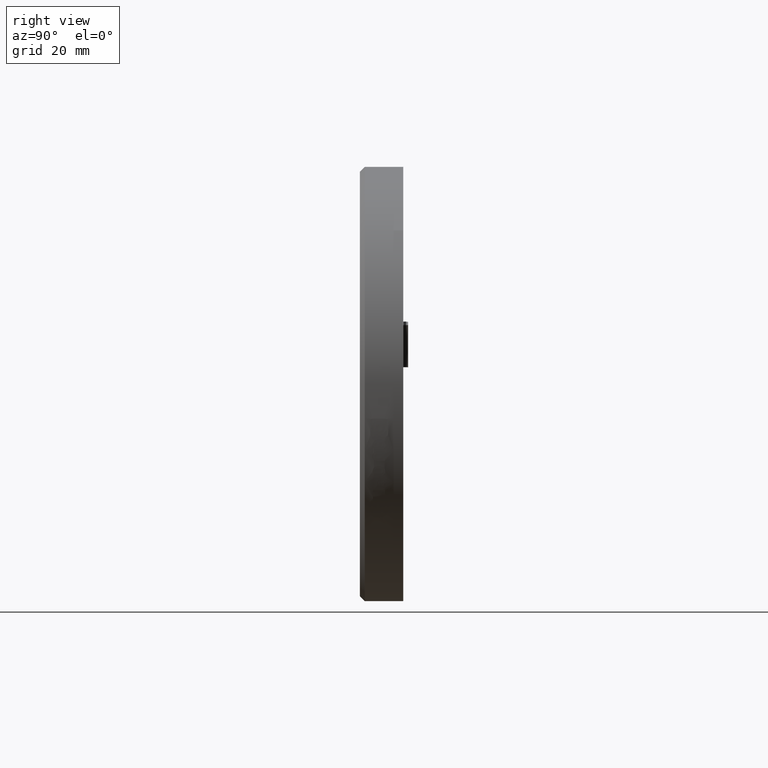
[diagram: clean part render]
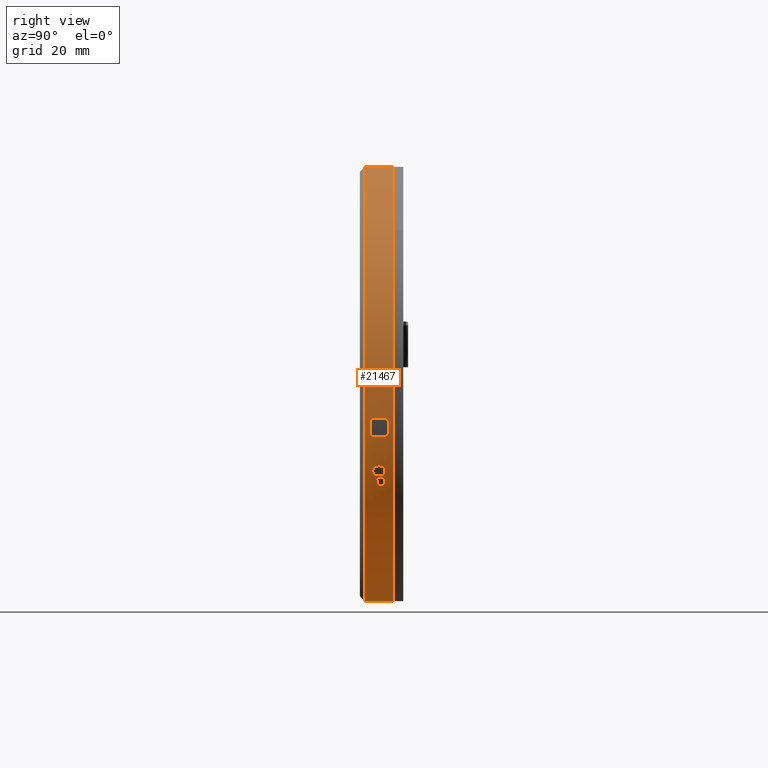
[diagram: same view with one face highlighted and labeled with its STEP entity id]
A machine part, right view. The second image highlights one B-rep face of the part: STEP entity #21467.
In plain terms, the highlighted cylindrical surface (partial cylindrical patch) has radius 45 mm, axis along (-0, -1, -0).
Its self-contained STEP definition (entity closure, byte-faithful):
#69 = CARTESIAN_POINT ( 'NONE',  ( 3.571428571428565800, 3.481703630410990100, 0.0000000000000000000 ) ) ;
#87 = CARTESIAN_POINT ( 'NONE',  ( 44.67511708032238700, 1.322472471044837900, -18.31692098552394300 ) ) ;
#103 = EDGE_CURVE ( 'NONE', #27299, #19382, #9905, .T. ) ;
#127 = CARTESIAN_POINT ( 'NONE',  ( 43.63689578378917800, 2.206508510150230400, -20.48830548708143700 ) ) ;
#149 = DIRECTION ( 'NONE',  ( 8.999925871200201800E-017, -1.000000000000000000, -3.620616613694328500E-017 ) ) ;
#172 = CARTESIAN_POINT ( 'NONE',  ( 45.25517909689692400, 2.563098979248214600, -16.95479112612466800 ) ) ;
#175 = AXIS2_PLACEMENT_3D ( 'NONE', #30231, #11366, #33397 ) ;
#197 = CARTESIAN_POINT ( 'NONE',  ( 43.34950992236915100, 3.016587351341239100, -21.04053811189136200 ) ) ;
#232 = CARTESIAN_POINT ( 'NONE',  ( 45.89171467771728200, 1.729404776828728200, -15.29691273606771100 ) ) ;
#236 = CARTESIAN_POINT ( 'NONE',  ( 41.55137728277024700, 3.205171206889390100, -24.13556381289527100 ) ) ;
#263 = CARTESIAN_POINT ( 'NONE',  ( 39.44205911190379500, 3.297952819299183200, -27.17175079096740100 ) ) ;
#268 = EDGE_CURVE ( 'NONE', #8537, #1462, #24136, .T. ) ;
#319 = CARTESIAN_POINT ( 'NONE',  ( 40.24256658882264000, -1.376447876447882900, -26.08117398640703000 ) ) ;
#328 = EDGE_CURVE ( 'NONE', #19259, #37848, #29235, .T. ) ;
#432 = B_SPLINE_CURVE_WITH_KNOTS ( 'NONE', 3,
 ( #17236, #26906, #33249, #14369, #36423, #17494, #39600, #20686, #1913, #23851 ),
 .UNSPECIFIED., .F., .F.,
 ( 4, 2, 2, 2, 4 ),
 ( 0.0000000000000000000, 0.0003442922951198817100, 0.0006885845902397634300, 0.001032876885359645300, 0.001377169180479526900 ),
 .UNSPECIFIED. ) ;
#652 = CARTESIAN_POINT ( 'NONE',  ( 40.70320905364275200, 3.100537085752773900, -25.42107568725278100 ) ) ;
#672 = EDGE_CURVE ( 'NONE', #29622, #9116, #28398, .T. ) ;
#676 = CARTESIAN_POINT ( 'NONE',  ( 41.77768855650739300, -1.376447876447879400, -23.77565347056867000 ) ) ;
#721 = DIRECTION ( 'NONE',  ( -0.0000000000000000000, -1.000000000000000000, -0.0000000000000000000 ) ) ;
#726 = CARTESIAN_POINT ( 'NONE',  ( 43.53707234595033500, 3.761871990277079200, -20.68234158760305200 ) ) ;
#801 = CARTESIAN_POINT ( 'NONE',  ( 46.77260303704212400, 3.865424560643528500, -12.59597256235578300 ) ) ;
#875 = CARTESIAN_POINT ( 'NONE',  ( 46.53344682196195900, 1.499872177894353800, -13.38918190897075000 ) ) ;
#909 = CARTESIAN_POINT ( 'NONE',  ( 39.43773588574283200, 2.238305580088765900, -27.17738190495542800 ) ) ;
#970 = CARTESIAN_POINT ( 'NONE',  ( 46.35857007875966200, 2.388680374597038600, -13.93773732108709100 ) ) ;
#989 = CARTESIAN_POINT ( 'NONE',  ( 41.03534121939420500, 1.650389406754450000, -24.92921056820066300 ) ) ;
#1008 = CARTESIAN_POINT ( 'NONE',  ( 46.94461485216682200, 2.784494235354769000, -11.99029348971798600 ) ) ;
#1067 = CARTESIAN_POINT ( 'NONE',  ( 39.50385630192398900, 1.654304654101635300, -27.08991323682956700 ) ) ;
#1071 = CARTESIAN_POINT ( 'NONE',  ( 44.73847869336903900, 3.854912570779164900, -18.17417715793327600 ) ) ;
#1113 = CARTESIAN_POINT ( 'NONE',  ( 46.07315996121118200, 1.279224375216554200, -14.78596467251848900 ) ) ;
#1178 = CARTESIAN_POINT ( 'NONE',  ( 47.03414500531140900, 3.366130067495399100, -11.66163185617455500 ) ) ;
#1200 = CARTESIAN_POINT ( 'NONE',  ( 47.25026435994578800, 1.082363058490016600, -10.82404864712109700 ) ) ;
#1287 = CARTESIAN_POINT ( 'NONE',  ( 40.17676015449692500, 2.034220758178501700, -26.17370037486055200 ) ) ;
#1298 = CARTESIAN_POINT ( 'NONE',  ( 39.75605406297006500, 2.867867965835441300, -26.75210852026592100 ) ) ;
#1308 = EDGE_CURVE ( 'NONE', #8273, #25219, #40108, .T. ) ;
#1376 = CARTESIAN_POINT ( 'NONE',  ( 41.55131356757096500, 1.943634889268796900, -24.13566444984933000 ) ) ;
#1462 = VERTEX_POINT ( 'NONE', #2745 ) ;
#1463 = ORIENTED_EDGE ( 'NONE', *, *, #23353, .F. ) ;
#1485 = CARTESIAN_POINT ( 'NONE',  ( 44.86972479264233000, 3.858513611382117700, -17.87393864531127000 ) ) ;
#1581 = CARTESIAN_POINT ( 'NONE',  ( 44.80396583731187100, 1.284029211806361000, -18.02436879942107600 ) ) ;
#1626 = CARTESIAN_POINT ( 'NONE',  ( 45.25517909689692400, 2.563098979248214600, -16.95479112612466800 ) ) ;
#1768 = EDGE_CURVE ( 'NONE', #10738, #35929, #3938, .T. ) ;
#1790 = CARTESIAN_POINT ( 'NONE',  ( 45.70669087561705600, 1.672627839643674700, -15.79938887252195900 ) ) ;
#1869 = CARTESIAN_POINT ( 'NONE',  ( 39.08968711655867900, 3.200672902669811300, -27.63066647253305100 ) ) ;
#1912 = CARTESIAN_POINT ( 'NONE',  ( 40.42895887791236500, 1.702633862969135300, -25.81709626791185000 ) ) ;
#1913 = CARTESIAN_POINT ( 'NONE',  ( 39.56895515269324900, 2.796287934497684100, -27.00353359848738000 ) ) ;
#2019 = CARTESIAN_POINT ( 'NONE',  ( 39.63647796533516000, 1.284029211806360100, -26.91304910661512700 ) ) ;
#2186 = CARTESIAN_POINT ( 'NONE',  ( 40.09388511980102300, 3.664172493945668100, -26.28913215422097900 ) ) ;
#2239 = ORIENTED_EDGE ( 'NONE', *, *, #33342, .F. ) ;
#2363 = VERTEX_POINT ( 'NONE', #4810 ) ;
#2415 = CARTESIAN_POINT ( 'NONE',  ( 39.03544244638546000, 2.028215258317967800, -27.70024765009989300 ) ) ;
#2485 = VECTOR ( 'NONE', #3920, 1000.000000000000000 ) ;
#2520 = CARTESIAN_POINT ( 'NONE',  ( 46.85651277189412400, 1.317076155963408500, -12.30551621551215300 ) ) ;
#2566 = CARTESIAN_POINT ( 'NONE',  ( 40.21011187119829300, 2.943518074307478900, -26.12680202974198100 ) ) ;
#2581 = CARTESIAN_POINT ( 'NONE',  ( 45.10254972163932800, 1.539125648647577100, -17.32561745901860600 ) ) ;
#2682 = DIRECTION ( 'NONE',  ( -8.999925871200201800E-017, 1.000000000000000000, 3.620616613694328500E-017 ) ) ;
#2704 = CARTESIAN_POINT ( 'NONE',  ( 45.04963009062910100, 1.444578561732465800, -17.45225555762712900 ) ) ;
#2724 = CARTESIAN_POINT ( 'NONE',  ( 39.78116901184155600, 3.480775923722156900, -26.71809915609812700 ) ) ;
#2739 = ORIENTED_EDGE ( 'NONE', *, *, #4453, .F. ) ;
#2745 = CARTESIAN_POINT ( 'NONE',  ( 46.19411829049013100, 2.260773397852898100, -14.43282096863267600 ) ) ;
#2750 = EDGE_CURVE ( 'NONE', #22887, #34433, #6008, .T. ) ;
#2774 = VERTEX_POINT ( 'NONE', #6212 ) ;
#2777 = CARTESIAN_POINT ( 'NONE',  ( 42.04841606049532000, 1.330540839713336000, -23.33498304619483900 ) ) ;
#2834 = CARTESIAN_POINT ( 'NONE',  ( 44.93255759550357500, 1.323509105032948800, -17.72792799990900600 ) ) ;
#2857 = EDGE_CURVE ( 'NONE', #3427, #34874, #20798, .T. ) ;
#2884 = CARTESIAN_POINT ( 'NONE',  ( 46.76037518999416400, 1.621238514131919900, -12.63783565246403700 ) ) ;
#2900 = CARTESIAN_POINT ( 'NONE',  ( 40.41210869619993700, 3.160159399211182900, -25.84114903839741500 ) ) ;
#2950 = CARTESIAN_POINT ( 'NONE',  ( 3.571428571428565800, 1.330540839713333400, 0.0000000000000000000 ) ) ;
#2954 = ORIENTED_EDGE ( 'NONE', *, *, #26828, .F. ) ;
#3033 = CARTESIAN_POINT ( 'NONE',  ( 40.54857961348751200, 3.585989753339643200, -25.64566219889157800 ) ) ;
#3074 = CARTESIAN_POINT ( 'NONE',  ( 47.39600334793163900, 0.7650821860656267200, -10.21795701981031500 ) ) ;
#3182 = ORIENTED_EDGE ( 'NONE', *, *, #24127, .F. ) ;
#3207 = DIRECTION ( 'NONE',  ( 1.000000000000000000, 8.673617379884035500E-017, 1.776356839400250500E-015 ) ) ;
#3224 = CARTESIAN_POINT ( 'NONE',  ( 44.55279856531277000, 1.451219710298367700, -18.58848222730959400 ) ) ;
#3256 = CARTESIAN_POINT ( 'NONE',  ( 43.48560468783176700, 2.310475701955177400, -20.78137335398301700 ) ) ;
#3274 = CARTESIAN_POINT ( 'NONE',  ( 39.63637420133924400, 3.502999981011053700, -26.91324703239668300 ) ) ;
#3278 = CARTESIAN_POINT ( 'NONE',  ( 3.571428571428565800, 4.493507519689175400, 0.0000000000000000000 ) ) ;
#3379 = EDGE_LOOP ( 'NONE', ( #21274, #36885, #17927, #34283, #35481, #4072, #12384, #36430, #38796, #32184, #26740, #38907, #25967, #30250 ) ) ;
#3380 = CARTESIAN_POINT ( 'NONE',  ( 45.96627594501514800, 1.624483304739891900, -15.08916077539397600 ) ) ;
#3383 = CARTESIAN_POINT ( 'NONE',  ( 41.59860844450954400, 2.897424443844497600, -24.06107926886967300 ) ) ;
#3407 = CARTESIAN_POINT ( 'NONE',  ( 46.52914893187586600, 3.538213960474200000, -13.40292688779597100 ) ) ;
#3410 = CARTESIAN_POINT ( 'NONE',  ( 39.39312477444850900, 3.086354793201730600, -27.23611721847567300 ) ) ;
#3427 = VERTEX_POINT ( 'NONE', #36185 ) ;
#3430 = ORIENTED_EDGE ( 'NONE', *, *, #35817, .F. ) ;
#3493 = VERTEX_POINT ( 'NONE', #9320 ) ;
#3531 = CARTESIAN_POINT ( 'NONE',  ( 46.76037518999416400, 1.621238514131919900, -12.63783565246403700 ) ) ;
#3669 = B_SPLINE_CURVE_WITH_KNOTS ( 'NONE', 3,
 ( #11355, #36705, #17776, #39872, #20956, #2186, #24124, #5323, #27329, #8479 ),
 .UNSPECIFIED., .F., .F.,
 ( 4, 2, 2, 2, 4 ),
 ( 0.0000000000000000000, 0.0003183977888005920000, 0.0006367955776011840100, 0.0009551933664017760100, 0.001273591155202368000 ),
 .UNSPECIFIED. ) ;
#3871 = CARTESIAN_POINT ( 'NONE',  ( 43.68863300644951400, 3.830540839713338500, -20.38682886397278800 ) ) ;
#3883 = ORIENTED_EDGE ( 'NONE', *, *, #37092, .F. ) ;
#3907 = VERTEX_POINT ( 'NONE', #13601 ) ;
#3920 = DIRECTION ( 'NONE',  ( -0.0000000000000000000, -1.000000000000000000, -0.0000000000000000000 ) ) ;
#3938 = B_SPLINE_CURVE_WITH_KNOTS ( 'NONE', 3,
 ( #33474, #34668, #27937, #12736, #12603, #12475, #12348, #12205, #11960, #23815 ),
 .UNSPECIFIED., .F., .F.,
 ( 4, 2, 2, 2, 4 ),
 ( 0.0000000000000000000, 0.0001778430127548647800, 0.0003556860255097295500, 0.0005335290382645943300, 0.0007113720510194591000 ),
 .UNSPECIFIED. ) ;
#3950 = CARTESIAN_POINT ( 'NONE',  ( 46.74028989954582900, 3.510447160073232100, -12.70639544932685200 ) ) ;
#4072 = ORIENTED_EDGE ( 'NONE', *, *, #1768, .F. ) ;
#4076 = AXIS2_PLACEMENT_3D ( 'NONE', #18885, #149, #22045 ) ;
#4079 = CARTESIAN_POINT ( 'NONE',  ( 39.38012560483492300, 2.103347078715458000, -27.25321928532191200 ) ) ;
#4103 = CARTESIAN_POINT ( 'NONE',  ( 46.75635486949840900, 3.516587351341241800, -12.65169989244705600 ) ) ;
#4135 = CARTESIAN_POINT ( 'NONE',  ( 46.35988004468504900, 2.240936149732495300, -13.93371588660838300 ) ) ;
#4149 = ORIENTED_EDGE ( 'NONE', *, *, #20917, .F. ) ;
#4154 = CARTESIAN_POINT ( 'NONE',  ( 41.19514322089815300, 1.822174881065265400, -24.68724575725271800 ) ) ;
#4173 = CARTESIAN_POINT ( 'NONE',  ( 46.92516399782061100, 3.092309910689308200, -12.06051871026167500 ) ) ;
#4200 = CARTESIAN_POINT ( 'NONE',  ( 46.77260303704212400, 3.865424560643528500, -12.59597256235578300 ) ) ;
#4224 = CARTESIAN_POINT ( 'NONE',  ( 39.61080061537958800, 1.613572920005158700, -26.94749028990332500 ) ) ;
#4228 = B_SPLINE_CURVE_WITH_KNOTS ( 'NONE', 3,
 ( #21870, #9520, #15824, #37915, #18997, #232, #22147, #3380, #25313, #6524 ),
 .UNSPECIFIED., .F., .F.,
 ( 4, 2, 2, 2, 4 ),
 ( 0.0000000000000000000, 0.0002410021130467721700, 0.0004820042260935443500, 0.0007230063391403165200, 0.0009640084521870886900 ),
 .UNSPECIFIED. ) ;
#4296 = CARTESIAN_POINT ( 'NONE',  ( 3.571428571428565800, 5.623552123552121500, 0.0000000000000000000 ) ) ;
#4335 = CARTESIAN_POINT ( 'NONE',  ( 47.06075392408106900, 3.145960524362922900, -11.56196774731866500 ) ) ;
#4355 = CARTESIAN_POINT ( 'NONE',  ( 47.23490287680380100, 1.351937184165035400, -10.88581699202397200 ) ) ;
#4387 = LINE ( 'NONE', #9287, #21036 ) ;
#4441 = ORIENTED_EDGE ( 'NONE', *, *, #6562, .F. ) ;
#4453 = EDGE_CURVE ( 'NONE', #16914, #2774, #34016, .T. ) ;
#4472 = CARTESIAN_POINT ( 'NONE',  ( 39.83669149089947600, 2.944063625692811700, -26.64268389426719000 ) ) ;
#4487 = ORIENTED_EDGE ( 'NONE', *, *, #28152, .F. ) ;
#4497 = ORIENTED_EDGE ( 'NONE', *, *, #2857, .F. ) ;
#4512 = B_SPLINE_CURVE_WITH_KNOTS ( 'NONE', 3,
 ( #35345, #16574, #989, #22895, #4154, #26099, #7283, #29297, #10431, #32445 ),
 .UNSPECIFIED., .F., .F.,
 ( 4, 2, 2, 2, 4 ),
 ( 0.0000000000000000000, 0.0003301948800840118100, 0.0006603897601680236300, 0.0009905846402520348500, 0.001320779520336046200 ),
 .UNSPECIFIED. ) ;
#4551 = CARTESIAN_POINT ( 'NONE',  ( 41.40128378514818100, 1.540158298367838800, -24.37032772175477300 ) ) ;
#4592 = CARTESIAN_POINT ( 'NONE',  ( 46.60743955924764500, 2.004959444364508700, -13.14921131689335700 ) ) ;
#4655 = CARTESIAN_POINT ( 'NONE',  ( 44.93317847511649900, 3.832186308739193900, -17.72650889606950400 ) ) ;
#4810 = CARTESIAN_POINT ( 'NONE',  ( 43.73979869081421200, 3.830540839713338500, -20.28551310546631800 ) ) ;
#4919 = EDGE_CURVE ( 'NONE', #32828, #7124, #36756, .T. ) ;
#4927 = CARTESIAN_POINT ( 'NONE',  ( 40.98111415642478100, 1.284029211806360500, -25.01030636421167200 ) ) ;
#4944 = CARTESIAN_POINT ( 'NONE',  ( 45.67616433891039000, 1.883337252010923900, -15.88053803132194200 ) ) ;
#4953 = EDGE_CURVE ( 'NONE', #29367, #33619, #35847, .T. ) ;
#5022 = CARTESIAN_POINT ( 'NONE',  ( 39.11044410185553500, 3.310228910468425000, -27.60401081505475300 ) ) ;
#5049 = B_SPLINE_CURVE_WITH_KNOTS ( 'NONE', 3,
 ( #10386, #4103, #3950, #32388, #13512, #35591, #16679, #38751 ),
 .UNSPECIFIED., .F., .F.,
 ( 4, 2, 2, 4 ),
 ( 0.0000000000000000000, 0.0001716901782114314000, 0.0003433803564228628000, 0.0006867607128457335200 ),
 .UNSPECIFIED. ) ;
#5063 = ORIENTED_EDGE ( 'NONE', *, *, #26388, .F. ) ;
#5160 = EDGE_CURVE ( 'NONE', #20882, #12631, #14653, .T. ) ;
#5215 = B_SPLINE_CURVE_WITH_KNOTS ( 'NONE', 3,
 ( #37237, #15178, #34085, #18323, #40437, #21479, #2724, #24661, #5870, #27866 ),
 .UNSPECIFIED., .F., .F.,
 ( 4, 2, 2, 2, 4 ),
 ( 0.0000000000000000000, 0.0001419164889355199100, 0.0002838329778710398100, 0.0004257494668065597200, 0.0005676659557420796300 ),
 .UNSPECIFIED. ) ;
#5323 = CARTESIAN_POINT ( 'NONE',  ( 40.19418080038492700, 3.394163602722887900, -26.14911790295207800 ) ) ;
#5517 = CARTESIAN_POINT ( 'NONE',  ( 47.08495414406412000, 2.586354793201674600, -11.47053147154010400 ) ) ;
#5567 = CARTESIAN_POINT ( 'NONE',  ( 41.32205370144011200, 2.551471072271484200, -24.49265813041413200 ) ) ;
#5605 = LINE ( 'NONE', #26433, #38090 ) ;
#5641 = CARTESIAN_POINT ( 'NONE',  ( 46.76342631481922800, 1.284029211806361400, -12.62740396656952100 ) ) ;
#5642 = VECTOR ( 'NONE', #26150, 1000.000000000000000 ) ;
#5669 = FACE_OUTER_BOUND ( 'NONE', #11692, .T. ) ;
#5690 = CARTESIAN_POINT ( 'NONE',  ( 40.09523706543141200, 2.655375396336820100, -26.28727915687683500 ) ) ;
#5745 = VERTEX_POINT ( 'NONE', #26688 ) ;
#5779 = CARTESIAN_POINT ( 'NONE',  ( 40.69500175962253500, 3.039843165294755500, -25.43305553292419300 ) ) ;
#5870 = CARTESIAN_POINT ( 'NONE',  ( 39.69834068971092500, 3.504959444364453200, -26.82999209958340700 ) ) ;
#6008 = B_SPLINE_CURVE_WITH_KNOTS ( 'NONE', 3,
 ( #39784, #35942, #20210, #32887, #33044, #10890, #875, #34038, #20652, #35651 ),
 .UNSPECIFIED., .F., .F.,
 ( 4, 2, 2, 2, 4 ),
 ( 0.0000000000000000000, 0.0003107352248857106100, 0.0006214704497714212200, 0.0009322056746571317800, 0.001242940899542842400 ),
 .UNSPECIFIED. ) ;
#6032 = LINE ( 'NONE', #38205, #38541 ) ;
#6040 = CARTESIAN_POINT ( 'NONE',  ( 46.82085288668125900, 1.659853648833484100, -12.42964326101269800 ) ) ;
#6079 = VERTEX_POINT ( 'NONE', #21774 ) ;
#6101 = DIRECTION ( 'NONE',  ( 0.0000000000000000000, -3.565820478396769900E-016, -1.000000000000000000 ) ) ;
#6106 = DIRECTION ( 'NONE',  ( -0.0000000000000000000, -1.000000000000000000, -0.0000000000000000000 ) ) ;
#6107 = EDGE_CURVE ( 'NONE', #31240, #18673, #36572, .T. ) ;
#6160 = VECTOR ( 'NONE', #38696, 1000.000000000000000 ) ;
#6176 = CARTESIAN_POINT ( 'NONE',  ( 40.72475061661500500, 3.786759463666274300, -25.38985207761764700 ) ) ;
#6212 = CARTESIAN_POINT ( 'NONE',  ( 46.35857007875966200, 2.388680374597038600, -13.93773732108709100 ) ) ;
#6270 = CARTESIAN_POINT ( 'NONE',  ( 45.65942756690660100, -1.376447876447878900, -15.92483408254667600 ) ) ;
#6288 = CIRCLE ( 'NONE', #175, 45.00000000000000000 ) ;
#6372 = CARTESIAN_POINT ( 'NONE',  ( 44.47264890817600500, 1.598967817150359800, -18.76413891387798600 ) ) ;
#6406 = CARTESIAN_POINT ( 'NONE',  ( 43.38146622167292300, 2.568163628196464800, -20.98003557196333800 ) ) ;
#6431 = DIRECTION ( 'NONE',  ( -1.000000000000000000, -9.637352644315595200E-017, 0.0000000000000000000 ) ) ;
#6524 = CARTESIAN_POINT ( 'NONE',  ( 46.02045810070219300, 1.621238514131919700, -14.93585926630455600 ) ) ;
#6529 = CARTESIAN_POINT ( 'NONE',  ( 41.60985913587528300, 2.735998508132903200, -24.04324963621786900 ) ) ;
#6562 = EDGE_CURVE ( 'NONE', #17151, #15111, #5215, .T. ) ;
#6621 = CARTESIAN_POINT ( 'NONE',  ( 3.571428571428571200, -0.3764478764478641500, 45.00000000000000000 ) ) ;
#6641 = FACE_BOUND ( 'NONE', #8310, .T. ) ;
#6778 = EDGE_LOOP ( 'NONE', ( #12182, #30377, #11321, #34032, #40419, #23078, #40718, #21490, #36184, #4149, #4441, #31526, #36073, #37818 ) ) ;
#6842 = DIRECTION ( 'NONE',  ( 0.0000000000000000000, 1.000000000000000000, 0.0000000000000000000 ) ) ;
#6879 = EDGE_CURVE ( 'NONE', #19382, #7617, #31015, .T. ) ;
#6913 = CARTESIAN_POINT ( 'NONE',  ( 41.77768855650739300, 3.830540839713338500, -23.77565347056867000 ) ) ;
#6944 = EDGE_CURVE ( 'NONE', #30098, #29622, #37119, .T. ) ;
#7073 = CARTESIAN_POINT ( 'NONE',  ( 3.571428571428565800, -0.3764478764478641500, -45.00000000000000000 ) ) ;
#7092 = CARTESIAN_POINT ( 'NONE',  ( 45.84093336861111800, 2.260773397852901700, -15.43661116310705600 ) ) ;
#7102 = B_SPLINE_CURVE_WITH_KNOTS ( 'NONE', 3,
 ( #16966, #39062, #20153, #1376, #23305, #4551, #26491, #7677, #29695, #10823 ),
 .UNSPECIFIED., .F., .F.,
 ( 4, 2, 2, 2, 4 ),
 ( 0.0000000000000000000, 0.0004811180740959602700, 0.0009622361481919211900, 0.001443354222287882100, 0.001924472296383842800 ),
 .UNSPECIFIED. ) ;
#7104 = CARTESIAN_POINT ( 'NONE',  ( 44.32919069440659900, 2.725405751731619500, -19.07367105109320000 ) ) ;
#7124 = VERTEX_POINT ( 'NONE', #11840 ) ;
#7160 = CARTESIAN_POINT ( 'NONE',  ( 3.571428571428565800, 1.330540839713331800, 0.0000000000000000000 ) ) ;
#7164 = LINE ( 'NONE', #13452, #6160 ) ;
#7215 = CARTESIAN_POINT ( 'NONE',  ( 47.24994238016862600, 4.173285561701316500, -10.82534680959520300 ) ) ;
#7218 = CARTESIAN_POINT ( 'NONE',  ( 39.37270514941715000, 1.993331537387777600, -27.26295280020794100 ) ) ;
#7235 = CARTESIAN_POINT ( 'NONE',  ( 47.94543176163111300, 4.391525220758214100, -7.480382177229667900 ) ) ;
#7272 = CARTESIAN_POINT ( 'NONE',  ( 40.48726216627530100, 2.032428844049451600, -25.73372600796876600 ) ) ;
#7283 = CARTESIAN_POINT ( 'NONE',  ( 41.28667374410365900, 2.111331064580490600, -24.54711655579551500 ) ) ;
#7304 = CARTESIAN_POINT ( 'NONE',  ( 46.87924333953422000, 3.361114347155272200, -12.22460652416716300 ) ) ;
#7333 = CARTESIAN_POINT ( 'NONE',  ( 42.60041424692222700, -1.376447876447879100, -22.39951510953104500 ) ) ;
#7356 = CARTESIAN_POINT ( 'NONE',  ( 47.23490287680378000, 3.906214708714177000, -10.88581699202396500 ) ) ;
#7364 = CARTESIAN_POINT ( 'NONE',  ( 39.68337895165026200, 1.609610607155188600, -26.85008453871992600 ) ) ;
#7394 = CARTESIAN_POINT ( 'NONE',  ( 3.571428571428565800, 1.330540839713332000, 0.0000000000000000000 ) ) ;
#7436 = DIRECTION ( 'NONE',  ( 0.0000000000000000000, 0.0000000000000000000, -1.000000000000000000 ) ) ;
#7459 = CARTESIAN_POINT ( 'NONE',  ( 39.79965095478231500, 1.613758976268143700, -26.69370481478801700 ) ) ;
#7481 = CARTESIAN_POINT ( 'NONE',  ( 47.08347181685655200, 2.749435451537135800, -11.47615468812895000 ) ) ;
#7496 = CARTESIAN_POINT ( 'NONE',  ( 47.23490287680378700, 3.813752579990660900, -10.88581699202396700 ) ) ;
#7596 = CARTESIAN_POINT ( 'NONE',  ( 39.68337895165026200, 1.609610607155188600, -26.85008453871992600 ) ) ;
#7602 = CARTESIAN_POINT ( 'NONE',  ( 39.88740037594973100, 3.074118030932866000, -26.57349705421087500 ) ) ;
#7617 = VERTEX_POINT ( 'NONE', #9784 ) ;
#7654 = CARTESIAN_POINT ( 'NONE',  ( 46.46178397307032500, 2.772401304829632100, -13.61680628931980100 ) ) ;
#7677 = CARTESIAN_POINT ( 'NONE',  ( 41.16146085261797800, 1.320899201008043800, -24.73888194371324900 ) ) ;
#7689 = EDGE_CURVE ( 'NONE', #26307, #29367, #40583, .T. ) ;
#7779 = CARTESIAN_POINT ( 'NONE',  ( 45.05086448798825000, 3.700881145358776400, -17.44880496169186700 ) ) ;
#8022 = LINE ( 'NONE', #6270, #15345 ) ;
#8048 = DIRECTION ( 'NONE',  ( -0.0000000000000000000, -1.000000000000000000, -0.0000000000000000000 ) ) ;
#8081 = CIRCLE ( 'NONE', #15365, 45.00000000000000000 ) ;
#8091 = CARTESIAN_POINT ( 'NONE',  ( 45.65696234822569000, 2.259392040147847300, -15.93134944847314900 ) ) ;
#8111 = EDGE_CURVE ( 'NONE', #38586, #2363, #16254, .T. ) ;
#8138 = ORIENTED_EDGE ( 'NONE', *, *, #10029, .F. ) ;
#8139 = CARTESIAN_POINT ( 'NONE',  ( 40.39694982747975900, 3.039843165294755500, -25.86273350247652300 ) ) ;
#8158 = CARTESIAN_POINT ( 'NONE',  ( 39.22485321941106700, 3.604421040858089200, -27.45618376454934400 ) ) ;
#8273 = VERTEX_POINT ( 'NONE', #36213 ) ;
#8310 = EDGE_LOOP ( 'NONE', ( #13161, #2739, #3883, #4487, #39012, #23666, #21082, #15081, #8637, #31134 ) ) ;
#8451 = B_SPLINE_CURVE_WITH_KNOTS ( 'NONE', 3,
 ( #16597, #16473, #1008, #22919, #4173, #26119, #7304, #29320, #10454, #32465 ),
 .UNSPECIFIED., .F., .F.,
 ( 4, 2, 2, 2, 4 ),
 ( 0.0000000000000000000, 0.0003141183026632449500, 0.0006282366053264899000, 0.0009423549079897349000, 0.001256473210652979800 ),
 .UNSPECIFIED. ) ;
#8458 = CARTESIAN_POINT ( 'NONE',  ( 47.99451073435582100, 1.260307462335412000, -7.182653815789365100 ) ) ;
#8479 = CARTESIAN_POINT ( 'NONE',  ( 40.21017539242623000, 3.179378049015681100, -26.12665748592485600 ) ) ;
#8517 = EDGE_CURVE ( 'NONE', #9276, #23756, #14097, .T. ) ;
#8537 = VERTEX_POINT ( 'NONE', #28983 ) ;
#8575 = CARTESIAN_POINT ( 'NONE',  ( 39.63647796533516000, 1.284029211806360100, -26.91304910661512700 ) ) ;
#8604 = CARTESIAN_POINT ( 'NONE',  ( 41.31750060591949800, 2.765037773052105000, -24.49968058930591400 ) ) ;
#8637 = ORIENTED_EDGE ( 'NONE', *, *, #28206, .F. ) ;
#8721 = CARTESIAN_POINT ( 'NONE',  ( 45.21022816375663200, 1.936398431889978500, -17.06494709095389000 ) ) ;
#8822 = AXIS2_PLACEMENT_3D ( 'NONE', #21446, #2682, #24616 ) ;
#8835 = CARTESIAN_POINT ( 'NONE',  ( 39.91593561814242000, 2.489414730975636500, -26.53467495919720800 ) ) ;
#8892 = CIRCLE ( 'NONE', #8822, 45.00000000000000000 ) ;
#8960 = VECTOR ( 'NONE', #18739, 1000.000000000000000 ) ;
#8962 = CARTESIAN_POINT ( 'NONE',  ( 3.571428571428565800, 3.830540839713334000, 0.0000000000000000000 ) ) ;
#8971 = AXIS2_PLACEMENT_3D ( 'NONE', #4296, #26256, #7436 ) ;
#9116 = VERTEX_POINT ( 'NONE', #19947 ) ;
#9166 = CARTESIAN_POINT ( 'NONE',  ( 46.89298031113020200, 1.851524632073392000, -12.17564126673498800 ) ) ;
#9190 = CARTESIAN_POINT ( 'NONE',  ( 40.08070299541171300, 1.473284863578556300, -26.30738691484603800 ) ) ;
#9206 = EDGE_CURVE ( 'NONE', #37385, #33458, #5605, .T. ) ;
#9276 = VERTEX_POINT ( 'NONE', #14179 ) ;
#9287 = CARTESIAN_POINT ( 'NONE',  ( 3.571428571428565800, -1.376447876447878900, -45.00000000000000000 ) ) ;
#9315 = CARTESIAN_POINT ( 'NONE',  ( 40.92509789421122000, 3.863778214173430500, -25.09419310519916400 ) ) ;
#9320 = CARTESIAN_POINT ( 'NONE',  ( 44.18561776003898700, 1.330540839713336500, -19.37750336219192700 ) ) ;
#9409 = B_SPLINE_CURVE_WITH_KNOTS ( 'NONE', 3,
 ( #31970, #9943, #9802, #13085, #35156, #16256, #38329, #19414, #652, #22552 ),
 .UNSPECIFIED., .F., .F.,
 ( 4, 2, 2, 2, 4 ),
 ( 0.0000000000000000000, 0.0001857318360081121700, 0.0003714636720162243400, 0.0005571955080243364900, 0.0007429273440324486900 ),
 .UNSPECIFIED. ) ;
#9422 = LINE ( 'NONE', #11308, #17770 ) ;
#9487 = EDGE_CURVE ( 'NONE', #18880, #40689, #30656, .T. ) ;
#9501 = CARTESIAN_POINT ( 'NONE',  ( 44.37629656523178300, 1.930974871375480400, -18.97274028548105200 ) ) ;
#9520 = CARTESIAN_POINT ( 'NONE',  ( 45.84002876493830300, 2.179896543750226000, -15.43908820608519500 ) ) ;
#9528 = CARTESIAN_POINT ( 'NONE',  ( 43.34812162933372500, 2.902122667156696000, -21.04316274216501300 ) ) ;
#9577 = EDGE_CURVE ( 'NONE', #26135, #33881, #6032, .T. ) ;
#9578 = CARTESIAN_POINT ( 'NONE',  ( 44.18561776003898700, -1.376447876447879100, -19.37750336219192700 ) ) ;
#9784 = CARTESIAN_POINT ( 'NONE',  ( 47.23490287680378700, 1.444843921003400500, -10.88581699202396500 ) ) ;
#9802 = CARTESIAN_POINT ( 'NONE',  ( 40.90554784006982900, 3.495831433549942100, -25.12303594151245500 ) ) ;
#9905 = CIRCLE ( 'NONE', #18823, 45.00000000000000000 ) ;
#9914 = CARTESIAN_POINT ( 'NONE',  ( 3.571428571428565800, -1.376447876447878900, 0.0000000000000000000 ) ) ;
#9931 = CARTESIAN_POINT ( 'NONE',  ( 39.61757333317015700, 2.367482888948131400, -26.93841801829744800 ) ) ;
#9943 = CARTESIAN_POINT ( 'NONE',  ( 40.94016121569711700, 3.504959444364453600, -25.07153246707997200 ) ) ;
#10029 = EDGE_CURVE ( 'NONE', #11268, #35368, #18954, .T. ) ;
#10049 = CARTESIAN_POINT ( 'NONE',  ( 3.571428571428565800, 5.623552123552121500, -45.00000000000000000 ) ) ;
#10053 = CYLINDRICAL_SURFACE ( 'NONE', #26890, 45.00000000000000000 ) ;
#10102 = EDGE_LOOP ( 'NONE', ( #3182, #13782, #27377, #19893, #19051, #25253, #37586, #2954, #38487, #26644 ) ) ;
#10212 = CARTESIAN_POINT ( 'NONE',  ( 39.64985584000307000, 2.377052467620311700, -26.89511267546911100 ) ) ;
#10239 = ORIENTED_EDGE ( 'NONE', *, *, #21049, .F. ) ;
#10265 = VERTEX_POINT ( 'NONE', #10611 ) ;
#10280 = EDGE_CURVE ( 'NONE', #17050, #17151, #17605, .T. ) ;
#10283 = DIRECTION ( 'NONE',  ( 1.000000000000000000, 9.155485012099815400E-017, 0.0000000000000000000 ) ) ;
#10383 = CARTESIAN_POINT ( 'NONE',  ( 47.97859481457570800, 4.166426802507747800, -7.280612473152270800 ) ) ;
#10386 = CARTESIAN_POINT ( 'NONE',  ( 46.77260303704212400, 3.516587351341240000, -12.59597256235578300 ) ) ;
#10410 = CARTESIAN_POINT ( 'NONE',  ( 46.33640225528218800, 1.806774126307850700, -14.00564740362562200 ) ) ;
#10416 = CARTESIAN_POINT ( 'NONE',  ( 40.59111209762314600, 1.835507161347279300, -25.58413937974689000 ) ) ;
#10431 = CARTESIAN_POINT ( 'NONE',  ( 41.32053095762245200, 2.439646173153089800, -24.49500514112740700 ) ) ;
#10454 = CARTESIAN_POINT ( 'NONE',  ( 46.80221303200049500, 3.506485688994885200, -12.49441735875478300 ) ) ;
#10529 = DIRECTION ( 'NONE',  ( 1.000000000000000000, 9.155485012099815400E-017, 0.0000000000000000000 ) ) ;
#10611 = CARTESIAN_POINT ( 'NONE',  ( 45.65942756690660100, 3.830540839713338500, -15.92483408254667900 ) ) ;
#10650 = EDGE_CURVE ( 'NONE', #30395, #3907, #11962, .T. ) ;
#10686 = EDGE_CURVE ( 'NONE', #40561, #37385, #29212, .T. ) ;
#10698 = CARTESIAN_POINT ( 'NONE',  ( 43.96296205956051800, 2.202633862969140700, -19.83743991741663100 ) ) ;
#10738 = VERTEX_POINT ( 'NONE', #4592 ) ;
#10746 = CARTESIAN_POINT ( 'NONE',  ( 39.88953649017156500, 3.179378049015681100, -26.57056712233551800 ) ) ;
#10776 = VERTEX_POINT ( 'NONE', #29874 ) ;
#10823 = CARTESIAN_POINT ( 'NONE',  ( 40.98111415642478100, 1.284029211806360500, -25.01030636421167200 ) ) ;
#10890 = CARTESIAN_POINT ( 'NONE',  ( 46.55984883093025000, 1.439373934518703800, -13.30431939428360600 ) ) ;
#10938 = CARTESIAN_POINT ( 'NONE',  ( 45.12536344318708400, 3.547625568367571300, -17.27058635211023200 ) ) ;
#10989 = EDGE_CURVE ( 'NONE', #37848, #17085, #39297, .T. ) ;
#11028 = CARTESIAN_POINT ( 'NONE',  ( 3.571428571428565800, 3.830540839713334000, 0.0000000000000000000 ) ) ;
#11066 = B_SPLINE_CURVE_WITH_KNOTS ( 'NONE', 3,
 ( #21677, #40632, #28073, #9190, #31201, #12333, #34398, #15508, #37564, #18654 ),
 .UNSPECIFIED., .F., .F.,
 ( 4, 2, 2, 2, 4 ),
 ( 1.951563910473908000E-018, 0.0002937856953688784400, 0.0005875713907377549300, 0.0008813570861066314100, 0.001175142781475507900 ),
 .UNSPECIFIED. ) ;
#11268 = VERTEX_POINT ( 'NONE', #11955 ) ;
#11300 = CARTESIAN_POINT ( 'NONE',  ( 39.40408829363117600, 3.789472447315090700, -27.22191899100806400 ) ) ;
#11308 = CARTESIAN_POINT ( 'NONE',  ( 43.23155209078275600, -1.376447876447878900, -21.26204605463847800 ) ) ;
#11321 = ORIENTED_EDGE ( 'NONE', *, *, #33602, .F. ) ;
#11355 = CARTESIAN_POINT ( 'NONE',  ( 39.67666301462088500, 3.865424560643527600, -26.85911476207134600 ) ) ;
#11366 = DIRECTION ( 'NONE',  ( 8.999925871200201800E-017, -1.000000000000000000, -3.620616613694329100E-017 ) ) ;
#11438 = LINE ( 'NONE', #35108, #38551 ) ;
#11463 = EDGE_CURVE ( 'NONE', #32189, #9276, #23086, .T. ) ;
#11584 = CARTESIAN_POINT ( 'NONE',  ( 47.97816112883085500, 0.9986183893493825200, -7.283307580952961900 ) ) ;
#11600 = EDGE_LOOP ( 'NONE', ( #24531, #31416, #34687, #31381 ) ) ;
#11692 = EDGE_LOOP ( 'NONE', ( #40597, #22514, #23639, #5063 ) ) ;
#11711 = CARTESIAN_POINT ( 'NONE',  ( 39.28540147414042100, 1.367830377374512600, -27.37741111155198200 ) ) ;
#11731 = EDGE_CURVE ( 'NONE', #34874, #17818, #28974, .T. ) ;
#11738 = CARTESIAN_POINT ( 'NONE',  ( 41.28335879310569100, 3.080446956220940400, -24.55224135574269800 ) ) ;
#11745 = EDGE_CURVE ( 'NONE', #14896, #32189, #36384, .T. ) ;
#11799 = DIRECTION ( 'NONE',  ( 0.0000000000000000000, 1.000000000000000000, 0.0000000000000000000 ) ) ;
#11840 = CARTESIAN_POINT ( 'NONE',  ( 40.42895887791236500, 2.179378049015680200, -25.81709626791185700 ) ) ;
#11849 = CARTESIAN_POINT ( 'NONE',  ( 40.21858451238348700, 3.063142547419398300, -26.11486494731685700 ) ) ;
#11955 = CARTESIAN_POINT ( 'NONE',  ( 42.85923026367022000, 3.481703630410995800, -21.94239362948109900 ) ) ;
#11960 = CARTESIAN_POINT ( 'NONE',  ( 46.74350902650696300, 1.619539865416799200, -12.69547462281786400 ) ) ;
#11962 = LINE ( 'NONE', #22625, #36156 ) ;
#11976 = CARTESIAN_POINT ( 'NONE',  ( 39.71826223620345800, 2.396388298347604800, -26.80334897030078500 ) ) ;
#11985 = DIRECTION ( 'NONE',  ( 8.999925871200199400E-017, -1.000000000000000000, -3.620616613694329700E-017 ) ) ;
#12092 = AXIS2_PLACEMENT_3D ( 'NONE', #15652, #37720, #18807 ) ;
#12096 = DIRECTION ( 'NONE',  ( -1.000000000000000000, -8.673617379884035500E-017, 0.0000000000000000000 ) ) ;
#12182 = ORIENTED_EDGE ( 'NONE', *, *, #16288, .F. ) ;
#12205 = CARTESIAN_POINT ( 'NONE',  ( 46.72671535194930900, 1.623944451322214500, -12.75243599295329000 ) ) ;
#12304 = CARTESIAN_POINT ( 'NONE',  ( 46.93209104726377500, 2.143747024996866600, -12.03550912229766100 ) ) ;
#12321 = CARTESIAN_POINT ( 'NONE',  ( 40.39694982747975900, 3.039843165294755500, -25.86273350247652300 ) ) ;
#12333 = CARTESIAN_POINT ( 'NONE',  ( 39.92610989883435500, 1.340674930002147400, -26.52065423754710900 ) ) ;
#12348 = CARTESIAN_POINT ( 'NONE',  ( 46.69351788498069300, 1.652209094182027500, -12.86424557047136500 ) ) ;
#12352 = CARTESIAN_POINT ( 'NONE',  ( 47.39600334793163900, 4.493507519689179800, -10.21795701981031700 ) ) ;
#12384 = ORIENTED_EDGE ( 'NONE', *, *, #12497, .F. ) ;
#12448 = AXIS2_PLACEMENT_3D ( 'NONE', #69, #21966, #3207 ) ;
#12475 = CARTESIAN_POINT ( 'NONE',  ( 46.67757390582161000, 1.676250334101866600, -12.91753150901532100 ) ) ;
#12497 = EDGE_CURVE ( 'NONE', #38885, #10738, #25899, .T. ) ;
#12539 = CARTESIAN_POINT ( 'NONE',  ( 40.42895887791236500, 1.702633862969135300, -25.81709626791185000 ) ) ;
#12603 = CARTESIAN_POINT ( 'NONE',  ( 46.64942958916300600, 1.746546864445753400, -13.01108043908308300 ) ) ;
#12631 = VERTEX_POINT ( 'NONE', #19193 ) ;
#12636 = CARTESIAN_POINT ( 'NONE',  ( 44.32803425074714500, 2.401105307420659000, -19.07614077482104900 ) ) ;
#12689 = CARTESIAN_POINT ( 'NONE',  ( 39.66998611661703200, 3.504959444364453600, -26.86808782099532100 ) ) ;
#12736 = CARTESIAN_POINT ( 'NONE',  ( 46.63768154684410700, 1.791785271645928800, -13.04986057808822200 ) ) ;
#12772 = CARTESIAN_POINT ( 'NONE',  ( 3.571428571428565800, 3.086354793201726100, 0.0000000000000000000 ) ) ;
#12917 = EDGE_CURVE ( 'NONE', #10776, #6079, #30762, .T. ) ;
#13084 = B_SPLINE_CURVE_WITH_KNOTS ( 'NONE', 3,
 ( #2884, #40614, #6040, #28044, #9166, #31181, #12304, #34372, #15483, #37544 ),
 .UNSPECIFIED., .F., .F.,
 ( 4, 2, 2, 2, 4 ),
 ( 0.0000000000000000000, 0.0003253503157312236300, 0.0006507006314624472600, 0.0009760509471936709400, 0.001301401262924894500 ),
 .UNSPECIFIED. ) ;
#13085 = CARTESIAN_POINT ( 'NONE',  ( 40.84034918020354600, 3.451271209021812500, -25.21965410429896800 ) ) ;
#13100 = DIRECTION ( 'NONE',  ( -0.0000000000000000000, -1.000000000000000000, -0.0000000000000000000 ) ) ;
#13104 = CIRCLE ( 'NONE', #21516, 45.00000000000000000 ) ;
#13159 = CARTESIAN_POINT ( 'NONE',  ( 43.34881423592627700, 3.129689165409842200, -21.04185333832580100 ) ) ;
#13161 = ORIENTED_EDGE ( 'NONE', *, *, #33862, .F. ) ;
#13199 = CARTESIAN_POINT ( 'NONE',  ( 45.84093336861111800, -1.376447876447878700, -15.43661116310705600 ) ) ;
#13227 = DIRECTION ( 'NONE',  ( 0.0000000000000000000, 1.000000000000000000, 0.0000000000000000000 ) ) ;
#13357 = B_SPLINE_CURVE_WITH_KNOTS ( 'NONE', 3,
 ( #29464, #7459, #38982, #20064, #1287, #23232 ),
 .UNSPECIFIED., .F., .F.,
 ( 4, 2, 4 ),
 ( 0.0000000000000000000, 0.0005789284124143863200, 0.001157856824828772600 ),
 .UNSPECIFIED. ) ;
#13365 = CARTESIAN_POINT ( 'NONE',  ( 47.89751795888828000, 4.493507519689179800, -7.759386000413949000 ) ) ;
#13452 = CARTESIAN_POINT ( 'NONE',  ( 43.96296205956051800, -1.376447876447879100, -19.83743991741663100 ) ) ;
#13502 = CARTESIAN_POINT ( 'NONE',  ( 44.37785643262084500, 3.192543848380141800, -18.96938456437012400 ) ) ;
#13508 = CARTESIAN_POINT ( 'NONE',  ( 47.99414547773217500, 3.879725758767831800, -7.184911856595008800 ) ) ;
#13512 = CARTESIAN_POINT ( 'NONE',  ( 46.69360916767335800, 3.454542810732109400, -12.86389045447440600 ) ) ;
#13544 = CARTESIAN_POINT ( 'NONE',  ( 46.27100815445376000, 1.502578448321012700, -14.20381238085711000 ) ) ;
#13550 = CARTESIAN_POINT ( 'NONE',  ( 46.80601695487406000, 2.772401304829634300, -12.48079994687998500 ) ) ;
#13551 = CARTESIAN_POINT ( 'NONE',  ( 40.71765086102805500, 1.685151626283430100, -25.40010510148879100 ) ) ;
#13594 = CIRCLE ( 'NONE', #39198, 45.00000000000000000 ) ;
#13601 = CARTESIAN_POINT ( 'NONE',  ( 47.99603101192574400, 1.444843921003401000, -7.173193013140814100 ) ) ;
#13611 = CARTESIAN_POINT ( 'NONE',  ( 46.92382268503892800, 3.741561655146527200, -12.06547767331941900 ) ) ;
#13646 = VERTEX_POINT ( 'NONE', #39438 ) ;
#13692 = DIRECTION ( 'NONE',  ( -8.999925871200201800E-017, 1.000000000000000000, 3.620616613694327800E-017 ) ) ;
#13755 = CARTESIAN_POINT ( 'NONE',  ( 39.63647796533516000, 2.818912932736606700, -26.91304910661512700 ) ) ;
#13782 = ORIENTED_EDGE ( 'NONE', *, *, #17602, .F. ) ;
#13922 = CARTESIAN_POINT ( 'NONE',  ( 44.80396583731187100, 3.865424560643528500, -18.02436879942107600 ) ) ;
#13975 = LINE ( 'NONE', #7333, #5642 ) ;
#14000 = FACE_BOUND ( 'NONE', #34955, .T. ) ;
#14034 = CARTESIAN_POINT ( 'NONE',  ( 39.37270514941715000, 1.993331537387777600, -27.26295280020794100 ) ) ;
#14039 = DIRECTION ( 'NONE',  ( -0.0000000000000000000, -1.000000000000000000, -0.0000000000000000000 ) ) ;
#14041 = DIRECTION ( 'NONE',  ( -8.999925871200199400E-017, 1.000000000000000000, 3.620616613694327800E-017 ) ) ;
#14061 = CARTESIAN_POINT ( 'NONE',  ( 45.18158674383494100, 3.350707247279619300, -17.13464394355047200 ) ) ;
#14097 = LINE ( 'NONE', #676, #29895 ) ;
#14156 = DIRECTION ( 'NONE',  ( -1.000000000000000000, -8.673617379884035500E-017, 1.083577672034152800E-013 ) ) ;
#14179 = CARTESIAN_POINT ( 'NONE',  ( 41.77768855650739300, 1.330540839713336000, -23.77565347056867000 ) ) ;
#14239 = CARTESIAN_POINT ( 'NONE',  ( 45.84835006677845100, 1.341373180998666900, -15.41646062880285400 ) ) ;
#14248 = CIRCLE ( 'NONE', #30403, 44.99999999999999300 ) ;
#14249 = EDGE_LOOP ( 'NONE', ( #20670, #26525, #36314, #22357 ) ) ;
#14286 = VECTOR ( 'NONE', #17044, 1000.000000000000000 ) ;
#14333 = CIRCLE ( 'NONE', #15082, 45.00000000000000000 ) ;
#14369 = CARTESIAN_POINT ( 'NONE',  ( 39.13165105522391900, 2.452128087187585200, -27.57670182256308100 ) ) ;
#14447 = CARTESIAN_POINT ( 'NONE',  ( 39.60737504018206300, 3.862233822025230800, -26.95225478486689100 ) ) ;
#14510 = DIRECTION ( 'NONE',  ( -8.999925871200201800E-017, 1.000000000000000000, 3.620616613694325400E-017 ) ) ;
#14612 = ORIENTED_EDGE ( 'NONE', *, *, #6879, .F. ) ;
#14653 = B_SPLINE_CURVE_WITH_KNOTS ( 'NONE', 3,
 ( #8575, #27418, #24213, #30584, #11711, #33747, #14865, #36924, #17993, #40105, #21196, #2415 ),
 .UNSPECIFIED., .F., .F.,
 ( 4, 2, 2, 2, 2, 4 ),
 ( 0.0000000000000000000, 0.0003520605674169994700, 0.0007041211348339989400, 0.0008801514185424949600, 0.001056181702250991100, 0.001408242269667985900 ),
 .UNSPECIFIED. ) ;
#14748 = CARTESIAN_POINT ( 'NONE',  ( 47.94226440176186100, 0.8259753792265622800, -7.499124355553020000 ) ) ;
#14761 = CARTESIAN_POINT ( 'NONE',  ( 44.86900349184203000, 1.294263333870310500, -17.87558869266989300 ) ) ;
#14808 = AXIS2_PLACEMENT_3D ( 'NONE', #7160, #29167, #10283 ) ;
#14865 = CARTESIAN_POINT ( 'NONE',  ( 39.16291280530661800, 1.494457993797005300, -27.53630118663695800 ) ) ;
#14877 = VECTOR ( 'NONE', #15903, 1000.000000000000000 ) ;
#14890 = CARTESIAN_POINT ( 'NONE',  ( 45.18301999076910400, 1.786845507276133100, -17.13144780453767200 ) ) ;
#14891 = CARTESIAN_POINT ( 'NONE',  ( 46.04693122808969700, 1.621238514131919700, -14.86062030307063800 ) ) ;
#14896 = VERTEX_POINT ( 'NONE', #31016 ) ;
#14900 = CARTESIAN_POINT ( 'NONE',  ( 41.19330408283779100, 3.360202316105650200, -24.69013105995019300 ) ) ;
#14951 = CARTESIAN_POINT ( 'NONE',  ( 47.07834200539674900, 2.255964596982804600, -11.49567607840136900 ) ) ;
#14975 = FACE_BOUND ( 'NONE', #14249, .T. ) ;
#15023 = EDGE_CURVE ( 'NONE', #21163, #30980, #9409, .T. ) ;
#15027 = VECTOR ( 'NONE', #6106, 1000.000000000000000 ) ;
#15081 = ORIENTED_EDGE ( 'NONE', *, *, #31761, .F. ) ;
#15082 = AXIS2_PLACEMENT_3D ( 'NONE', #2950, #24881, #6101 ) ;
#15111 = VERTEX_POINT ( 'NONE', #26607 ) ;
#15178 = CARTESIAN_POINT ( 'NONE',  ( 39.89051434314384900, 3.227066217864190900, -26.56923053928057100 ) ) ;
#15345 = VECTOR ( 'NONE', #28277, 1000.000000000000000 ) ;
#15365 = AXIS2_PLACEMENT_3D ( 'NONE', #8962, #30966, #12096 ) ;
#15483 = CARTESIAN_POINT ( 'NONE',  ( 46.94727266985918800, 2.465659925172391600, -11.98065793972167000 ) ) ;
#15508 = CARTESIAN_POINT ( 'NONE',  ( 39.75414514662755700, 1.282387595910617900, -26.75482191143464300 ) ) ;
#15652 = CARTESIAN_POINT ( 'NONE',  ( 3.571428571428565800, 3.830540839713334000, 0.0000000000000000000 ) ) ;
#15819 = EDGE_CURVE ( 'NONE', #9116, #27304, #16523, .T. ) ;
#15824 = CARTESIAN_POINT ( 'NONE',  ( 45.84110113206818200, 2.099526473205989100, -15.43615848866452800 ) ) ;
#15849 = CARTESIAN_POINT ( 'NONE',  ( 39.60324433489585500, 3.492526144273359300, -26.95757663572825500 ) ) ;
#15903 = DIRECTION ( 'NONE',  ( -0.0000000000000000000, -1.000000000000000000, -0.0000000000000000000 ) ) ;
#15927 = DIRECTION ( 'NONE',  ( 1.000000000000000000, 8.673617379884035500E-017, 0.0000000000000000000 ) ) ;
#15930 = FACE_BOUND ( 'NONE', #3379, .T. ) ;
#16116 = CARTESIAN_POINT ( 'NONE',  ( 41.16926884098882800, 3.825964856305946500, -24.72700409917220600 ) ) ;
#16197 = VERTEX_POINT ( 'NONE', #27670 ) ;
#16254 = B_SPLINE_CURVE_WITH_KNOTS ( 'NONE', 3,
 ( #32051, #13159, #35226, #16335, #38410, #19481, #726, #22632, #3871, #25821 ),
 .UNSPECIFIED., .F., .F.,
 ( 4, 2, 2, 2, 4 ),
 ( 0.0000000000000000000, 0.0003348098627858842300, 0.0006696197255717684500, 0.001004429588357652800, 0.001339239451143536900 ),
 .UNSPECIFIED. ) ;
#16256 = CARTESIAN_POINT ( 'NONE',  ( 40.76242006642876700, 3.326026264143147500, -25.33440343101332500 ) ) ;
#16288 = EDGE_CURVE ( 'NONE', #40689, #20882, #11066, .T. ) ;
#16335 = CARTESIAN_POINT ( 'NONE',  ( 43.38423287929358500, 3.456829687079606900, -20.97478705046700000 ) ) ;
#16350 = CARTESIAN_POINT ( 'NONE',  ( 3.571428571428565800, 3.039843165294751500, 0.0000000000000000000 ) ) ;
#16473 = CARTESIAN_POINT ( 'NONE',  ( 46.94729481315942400, 2.680092644066632200, -11.98057774243172700 ) ) ;
#16515 = CARTESIAN_POINT ( 'NONE',  ( 39.58571531903967900, 2.355067476694805400, -26.98099015012383400 ) ) ;
#16523 = B_SPLINE_CURVE_WITH_KNOTS ( 'NONE', 3,
 ( #1581, #17294, #87, #21980, #3224, #25151, #6372, #28364, #9501, #31518, #12636, #34705 ),
 .UNSPECIFIED., .F., .F.,
 ( 4, 2, 2, 2, 2, 4 ),
 ( 0.0000000000000000000, 0.0004809884160403179800, 0.0007214826240604769800, 0.0009619768320806359700, 0.001442965248120953500, 0.001923953664161271100 ),
 .UNSPECIFIED. ) ;
#16574 = CARTESIAN_POINT ( 'NONE',  ( 40.97545832174008500, 1.628409434681700200, -25.01901291085926000 ) ) ;
#16597 = CARTESIAN_POINT ( 'NONE',  ( 46.94833460967036800, 2.574726886224944600, -11.97681186917209200 ) ) ;
#16626 = VERTEX_POINT ( 'NONE', #36597 ) ;
#16649 = CARTESIAN_POINT ( 'NONE',  ( 47.23716371202097300, 3.997134208116210500, -10.87677694539812000 ) ) ;
#16662 = CARTESIAN_POINT ( 'NONE',  ( 47.35409286636057400, 0.7741072165377217400, -10.39644543533521100 ) ) ;
#16665 = CARTESIAN_POINT ( 'NONE',  ( 39.38081776866586400, 1.871103292316261200, -27.25230988861420700 ) ) ;
#16669 = CARTESIAN_POINT ( 'NONE',  ( 44.49378696234989400, 3.596403863066595500, -18.71820367098168000 ) ) ;
#16675 = CARTESIAN_POINT ( 'NONE',  ( 47.99603101192574400, 3.677813823481139300, -7.173193013140814100 ) ) ;
#16679 = CARTESIAN_POINT ( 'NONE',  ( 46.63657348471685500, 3.243950311254040200, -13.05352445565730300 ) ) ;
#16710 = CARTESIAN_POINT ( 'NONE',  ( 46.21224361218708100, 1.379559159160982400, -14.37932300570920300 ) ) ;
#16716 = CARTESIAN_POINT ( 'NONE',  ( 40.86279800720219400, 1.616800444335287500, -25.18654248279088000 ) ) ;
#16777 = CARTESIAN_POINT ( 'NONE',  ( 46.97856480315844200, 3.612534689835890800, -11.86697122789695600 ) ) ;
#16796 = CARTESIAN_POINT ( 'NONE',  ( 47.31302597114206800, 0.8252443918486621600, -10.56789607130920700 ) ) ;
#16844 = CIRCLE ( 'NONE', #12448, 45.00000000000000000 ) ;
#16900 = CARTESIAN_POINT ( 'NONE',  ( 44.32493656374769100, 2.563098979248214600, -19.08275625584472800 ) ) ;
#16914 = VERTEX_POINT ( 'NONE', #28696 ) ;
#16966 = CARTESIAN_POINT ( 'NONE',  ( 41.61374330166413700, 2.574726886224944200, -24.03710236209227700 ) ) ;
#17044 = DIRECTION ( 'NONE',  ( -0.0000000000000000000, -1.000000000000000000, -0.0000000000000000000 ) ) ;
#17050 = VERTEX_POINT ( 'NONE', #29242 ) ;
#17085 = VERTEX_POINT ( 'NONE', #26468 ) ;
#17143 = EDGE_LOOP ( 'NONE', ( #37660, #34846, #22557, #24643, #26440, #2239, #35460 ) ) ;
#17151 = VERTEX_POINT ( 'NONE', #17482 ) ;
#17188 = ORIENTED_EDGE ( 'NONE', *, *, #23428, .F. ) ;
#17207 = CARTESIAN_POINT ( 'NONE',  ( 45.21946362382569600, 3.127226523894636800, -17.04234929295763100 ) ) ;
#17236 = CARTESIAN_POINT ( 'NONE',  ( 39.03544244638546000, 2.028215258317967800, -27.70024765009989300 ) ) ;
#17248 = CARTESIAN_POINT ( 'NONE',  ( 46.02405052905489700, 1.284029211806361200, -14.92564534359780600 ) ) ;
#17294 = CARTESIAN_POINT ( 'NONE',  ( 44.73917391741203200, 1.294224665836844800, -18.17258676375193700 ) ) ;
#17299 = CIRCLE ( 'NONE', #37783, 45.00000000000000000 ) ;
#17366 = CARTESIAN_POINT ( 'NONE',  ( 40.97497022646570000, 3.504959444364454100, -25.01949383300754800 ) ) ;
#17374 = CARTESIAN_POINT ( 'NONE',  ( 43.23155209078275600, 3.830540839713338900, -21.26204605463847800 ) ) ;
#17375 = CARTESIAN_POINT ( 'NONE',  ( 45.77789064753805800, 1.445076951155098500, -15.60829605057542800 ) ) ;
#17403 = CARTESIAN_POINT ( 'NONE',  ( 41.08287263977806000, 3.855081368636354500, -24.85794639919308900 ) ) ;
#17482 = CARTESIAN_POINT ( 'NONE',  ( 39.88953649017156500, 3.179378049015681100, -26.57056712233551800 ) ) ;
#17493 = CARTESIAN_POINT ( 'NONE',  ( 40.77673049608255700, 1.307718577217128700, -25.31393696574029300 ) ) ;
#17494 = CARTESIAN_POINT ( 'NONE',  ( 39.30645594901427100, 2.650360944094328100, -27.34990844488820400 ) ) ;
#17524 = VECTOR ( 'NONE', #27899, 1000.000000000000000 ) ;
#17538 = CARTESIAN_POINT ( 'NONE',  ( 41.29179807271786000, 3.731834896283320500, -24.53934200116550800 ) ) ;
#17602 = EDGE_CURVE ( 'NONE', #30980, #33710, #35213, .T. ) ;
#17605 = B_SPLINE_CURVE_WITH_KNOTS ( 'NONE', 3,
 ( #13755, #32626, #20078, #1298, #23244, #4472, #26421, #7602, #29637, #10746 ),
 .UNSPECIFIED., .F., .F.,
 ( 4, 2, 2, 2, 4 ),
 ( 0.0000000000000000000, 0.0001547324898067190900, 0.0003094649796134381800, 0.0004641974694201572700, 0.0006189299592268763600 ),
 .UNSPECIFIED. ) ;
#17668 = EDGE_CURVE ( 'NONE', #40304, #32484, #7164, .T. ) ;
#17753 = CARTESIAN_POINT ( 'NONE',  ( 47.99603101192573700, 1.351785863832422300, -7.173193013140814100 ) ) ;
#17770 = VECTOR ( 'NONE', #30177, 1000.000000000000000 ) ;
#17776 = CARTESIAN_POINT ( 'NONE',  ( 39.80340640363055400, 3.855417806589739100, -26.68809921311915900 ) ) ;
#17806 = CARTESIAN_POINT ( 'NONE',  ( 41.43232698551549500, 3.540993549839351700, -24.32190223328209600 ) ) ;
#17818 = VERTEX_POINT ( 'NONE', #30409 ) ;
#17850 = EDGE_CURVE ( 'NONE', #7617, #3427, #31243, .T. ) ;
#17876 = CARTESIAN_POINT ( 'NONE',  ( 47.89613241094691200, 0.7650821860656270600, -7.767197428947183000 ) ) ;
#17927 = ORIENTED_EDGE ( 'NONE', *, *, #30233, .F. ) ;
#17993 = CARTESIAN_POINT ( 'NONE',  ( 39.09231508145507700, 1.629591455222257700, -27.62729212326219400 ) ) ;
#18014 = CARTESIAN_POINT ( 'NONE',  ( 45.25245509505174400, 2.401620649773559300, -16.96148814837049900 ) ) ;
#18015 = CARTESIAN_POINT ( 'NONE',  ( 46.55378893630042800, 3.623179611884344500, -13.32388577059748900 ) ) ;
#18028 = CARTESIAN_POINT ( 'NONE',  ( 41.03491550964149300, 3.500891724132653600, -24.92987707611970500 ) ) ;
#18061 = CARTESIAN_POINT ( 'NONE',  ( 41.40024642175686900, 3.597664292683355300, -24.37180175286716700 ) ) ;
#18092 = CARTESIAN_POINT ( 'NONE',  ( 47.03598082977529100, 1.784214158172682500, -11.65524479622763800 ) ) ;
#18133 = LINE ( 'NONE', #13199, #2485 ) ;
#18167 = CARTESIAN_POINT ( 'NONE',  ( 44.80396583731187100, 1.284029211806361000, -18.02436879942107600 ) ) ;
#18323 = CARTESIAN_POINT ( 'NONE',  ( 39.86958429345199300, 3.364781274106373800, -26.59782197668010900 ) ) ;
#18463 = CARTESIAN_POINT ( 'NONE',  ( 42.20704349713933100, -1.376447876447878900, -23.07139482805915900 ) ) ;
#18478 = DIRECTION ( 'NONE',  ( -0.0000000000000000000, -1.000000000000000000, -0.0000000000000000000 ) ) ;
#18565 = EDGE_CURVE ( 'NONE', #25219, #22444, #7102, .T. ) ;
#18654 = CARTESIAN_POINT ( 'NONE',  ( 39.63647796533516000, 1.284029211806360100, -26.91304910661512700 ) ) ;
#18673 = VERTEX_POINT ( 'NONE', #17374 ) ;
#18739 = DIRECTION ( 'NONE',  ( 0.0000000000000000000, 1.000000000000000000, 0.0000000000000000000 ) ) ;
#18743 = CARTESIAN_POINT ( 'NONE',  ( 41.33005358397927200, 3.692740934024930400, -24.48040885679722600 ) ) ;
#18753 = EDGE_CURVE ( 'NONE', #37506, #33411, #3669, .T. ) ;
#18776 = CARTESIAN_POINT ( 'NONE',  ( 3.571428571428571200, 5.623552123552121500, 45.00000000000000000 ) ) ;
#18797 = AXIS2_PLACEMENT_3D ( 'NONE', #32582, #13692, #35758 ) ;
#18807 = DIRECTION ( 'NONE',  ( -1.000000000000000000, -8.673617379884035500E-017, 0.0000000000000000000 ) ) ;
#18823 = AXIS2_PLACEMENT_3D ( 'NONE', #28341, #27537, #27401 ) ;
#18830 = ORIENTED_EDGE ( 'NONE', *, *, #103, .F. ) ;
#18880 = VERTEX_POINT ( 'NONE', #27855 ) ;
#18885 = CARTESIAN_POINT ( 'NONE',  ( 3.571428571428565800, 3.830540839713334000, 0.0000000000000000000 ) ) ;
#18954 = LINE ( 'NONE', #21719, #15027 ) ;
#18986 = CARTESIAN_POINT ( 'NONE',  ( 46.07305014420953200, 1.631628326027394900, -14.78572394138577700 ) ) ;
#18997 = CARTESIAN_POINT ( 'NONE',  ( 45.86006131518010400, 1.861631381720293900, -15.38420280798160700 ) ) ;
#19029 = CARTESIAN_POINT ( 'NONE',  ( 39.51307588317319400, 3.417282084722774300, -27.07765744340869700 ) ) ;
#19051 = ORIENTED_EDGE ( 'NONE', *, *, #29690, .F. ) ;
#19123 = CARTESIAN_POINT ( 'NONE',  ( 41.61374330166413700, 2.574726886224944200, -24.03710236209227700 ) ) ;
#19193 = CARTESIAN_POINT ( 'NONE',  ( 39.03544244638546000, 2.028215258317967800, -27.70024765009989300 ) ) ;
#19240 = ORIENTED_EDGE ( 'NONE', *, *, #6107, .F. ) ;
#19259 = VERTEX_POINT ( 'NONE', #38724 ) ;
#19301 = EDGE_CURVE ( 'NONE', #21488, #33458, #14248, .T. ) ;
#19382 = VERTEX_POINT ( 'NONE', #3074 ) ;
#19411 = CARTESIAN_POINT ( 'NONE',  ( 40.42895887791236500, -1.376447876447882500, -25.81709626791185000 ) ) ;
#19414 = CARTESIAN_POINT ( 'NONE',  ( 40.71402162587386200, 3.160161358406878800, -25.40528406348345000 ) ) ;
#19481 = CARTESIAN_POINT ( 'NONE',  ( 43.48863886092224400, 3.711629142804465400, -20.77554354954066800 ) ) ;
#19499 = DIRECTION ( 'NONE',  ( 1.000000000000000000, 8.673617379884035500E-017, 0.0000000000000000000 ) ) ;
#19609 = CARTESIAN_POINT ( 'NONE',  ( 39.07709926725819800, 3.086354793201729700, -27.64683252091105100 ) ) ;
#19672 = CARTESIAN_POINT ( 'NONE',  ( 39.49285003758486600, 2.298513395567441700, -27.10449349136406000 ) ) ;
#19677 = CARTESIAN_POINT ( 'NONE',  ( 47.37501645945747000, 0.7650821860656267200, -10.30796928561637500 ) ) ;
#19686 = B_SPLINE_CURVE_WITH_KNOTS ( 'NONE', 3,
 ( #35446, #13365, #26040, #7235, #29241, #10383, #32386, #13508, #35586, #16675 ),
 .UNSPECIFIED., .F., .F.,
 ( 4, 2, 2, 2, 4 ),
 ( 0.0000000000000000000, 0.0003005615471159360200, 0.0006011230942318720500, 0.0009016846413478081200, 0.001202246188463742800 ),
 .UNSPECIFIED. ) ;
#19745 = CARTESIAN_POINT ( 'NONE',  ( 40.45702718511659400, 2.104259146946980700, -25.77702481786586800 ) ) ;
#19833 = CARTESIAN_POINT ( 'NONE',  ( 39.44048512820807400, 1.717274331474142100, -27.17376572197500600 ) ) ;
#19839 = CARTESIAN_POINT ( 'NONE',  ( 44.67319380592564900, 3.824138956239247400, -18.32123006162030500 ) ) ;
#19857 = EDGE_CURVE ( 'NONE', #17085, #22887, #32373, .T. ) ;
#19872 = CARTESIAN_POINT ( 'NONE',  ( 46.12137405855000300, 1.289554890148508500, -14.64658279238750400 ) ) ;
#19893 = ORIENTED_EDGE ( 'NONE', *, *, #22974, .F. ) ;
#19942 = CARTESIAN_POINT ( 'NONE',  ( 47.02236962591673800, 3.434885077499394000, -11.70549057658653200 ) ) ;
#19947 = CARTESIAN_POINT ( 'NONE',  ( 44.80396583731187100, 1.284029211806361000, -18.02436879942107600 ) ) ;
#19964 = CARTESIAN_POINT ( 'NONE',  ( 47.26133705379768200, 0.9988942345728267800, -10.77943786298212600 ) ) ;
#19970 = B_SPLINE_CURVE_WITH_KNOTS ( 'NONE', 3,
 ( #12689, #3274, #15849, #37945, #19029, #263, #22174, #3410 ),
 .UNSPECIFIED., .F., .F.,
 ( 4, 2, 2, 4 ),
 ( 0.0000000000000000000, 0.0001670272650730942900, 0.0003340545301461885800, 0.0006681090602923859500 ),
 .UNSPECIFIED. ) ;
#19999 = AXIS2_PLACEMENT_3D ( 'NONE', #16350, #38428, #19499 ) ;
#20064 = CARTESIAN_POINT ( 'NONE',  ( 40.09995672507431400, 1.891713729973975900, -26.28103003675453700 ) ) ;
#20078 = CARTESIAN_POINT ( 'NONE',  ( 39.69732923060188800, 2.837496053895074000, -26.83135728595815900 ) ) ;
#20102 = CARTESIAN_POINT ( 'NONE',  ( 47.26103989171335200, 4.257897488682274900, -10.78063929436605400 ) ) ;
#20153 = CARTESIAN_POINT ( 'NONE',  ( 41.59876355767508500, 2.252629714499637400, -24.06083449508173900 ) ) ;
#20210 = CARTESIAN_POINT ( 'NONE',  ( 46.70448328093850400, 1.290747998111007700, -12.82770569980521600 ) ) ;
#20265 = B_SPLINE_CURVE_WITH_KNOTS ( 'NONE', 3,
 ( #20631, #1869, #5022, #27001, #8158, #30172, #11300, #33339, #14447, #36511 ),
 .UNSPECIFIED., .F., .F.,
 ( 4, 2, 2, 2, 4 ),
 ( 0.0000000000000000000, 0.0003435950507874844400, 0.0006871901015749688800, 0.001030785152362453400, 0.001374380203149937800 ),
 .UNSPECIFIED. ) ;
#20387 = CARTESIAN_POINT ( 'NONE',  ( 45.25251142110389700, 2.727297644509143000, -16.96134966945397300 ) ) ;
#20514 = B_SPLINE_CURVE_WITH_KNOTS ( 'NONE', 3,
 ( #36828, #33655, #8604, #30612, #11738, #33783, #14900, #36954, #18028, #40135 ),
 .UNSPECIFIED., .F., .F.,
 ( 4, 2, 2, 2, 4 ),
 ( 0.0000000000000000000, 0.0003194340157472156600, 0.0006388680314944313100, 0.0009583020472416469700, 0.001277736062988862600 ),
 .UNSPECIFIED. ) ;
#20547 = CARTESIAN_POINT ( 'NONE',  ( 45.72136162607346000, 1.606918356719309000, -15.76025707657184100 ) ) ;
#20631 = CARTESIAN_POINT ( 'NONE',  ( 39.07709926725819800, 3.086354793201729700, -27.64683252091105100 ) ) ;
#20652 = CARTESIAN_POINT ( 'NONE',  ( 46.47345982013681700, 1.743253644602701800, -13.58002958708458300 ) ) ;
#20670 = ORIENTED_EDGE ( 'NONE', *, *, #8517, .F. ) ;
#20685 = CARTESIAN_POINT ( 'NONE',  ( 40.49414069888035800, 1.555468112955744400, -25.72404006527667200 ) ) ;
#20686 = CARTESIAN_POINT ( 'NONE',  ( 39.50157516733204200, 2.768207220187386900, -27.09310559908595200 ) ) ;
#20798 = B_SPLINE_CURVE_WITH_KNOTS ( 'NONE', 3,
 ( #7496, #7356, #16649, #7215, #20102, #39016, #29221, #29365, #29502, #35830 ),
 .UNSPECIFIED., .F., .F.,
 ( 4, 2, 2, 2, 4 ),
 ( 0.0000000000000000000, 0.0002736618354528855000, 0.0005473236709057709900, 0.0008209855063586564900, 0.001094647341811542000 ),
 .UNSPECIFIED. ) ;
#20882 = VERTEX_POINT ( 'NONE', #2019 ) ;
#20917 = EDGE_CURVE ( 'NONE', #15111, #26555, #19970, .T. ) ;
#20956 = CARTESIAN_POINT ( 'NONE',  ( 39.98712803909302900, 3.778057217688310500, -26.43681399167819600 ) ) ;
#21036 = VECTOR ( 'NONE', #18478, 1000.000000000000000 ) ;
#21049 = EDGE_CURVE ( 'NONE', #35368, #16197, #13104, .T. ) ;
#21082 = ORIENTED_EDGE ( 'NONE', *, *, #23231, .F. ) ;
#21163 = VERTEX_POINT ( 'NONE', #17366 ) ;
#21196 = CARTESIAN_POINT ( 'NONE',  ( 39.03435138351122900, 1.909206375863352600, -27.70164451374529300 ) ) ;
#21274 = ORIENTED_EDGE ( 'NONE', *, *, #328, .F. ) ;
#21276 = CARTESIAN_POINT ( 'NONE',  ( 46.94063140699425700, 1.434920099182776200, -12.00568569383628400 ) ) ;
#21446 = CARTESIAN_POINT ( 'NONE',  ( 3.571428571428565800, 2.423564095527284100, 0.0000000000000000000 ) ) ;
#21454 = CARTESIAN_POINT ( 'NONE',  ( 41.61374330166413700, 2.574726886224944200, -24.03710236209227700 ) ) ;
#21467 = ADVANCED_FACE ( 'NONE', ( #15930, #6641, #23350, #40159, #39171, #14975, #30758, #22307, #14000, #5669 ), #10053, .T. ) ;
#21479 = CARTESIAN_POINT ( 'NONE',  ( 39.80807066010639500, 3.463307749194275000, -26.68158938852327100 ) ) ;
#21488 = VERTEX_POINT ( 'NONE', #7073 ) ;
#21490 = ORIENTED_EDGE ( 'NONE', *, *, #21712, .F. ) ;
#21516 = AXIS2_PLACEMENT_3D ( 'NONE', #7394, #29401, #10529 ) ;
#21677 = CARTESIAN_POINT ( 'NONE',  ( 40.24256658882264000, 1.749145490876111300, -26.08117398640703000 ) ) ;
#21712 = EDGE_CURVE ( 'NONE', #29692, #37506, #20265, .T. ) ;
#21719 = CARTESIAN_POINT ( 'NONE',  ( 42.85923026367022000, -1.376447876447879100, -21.94239362948109900 ) ) ;
#21774 = CARTESIAN_POINT ( 'NONE',  ( 45.65942756690660100, 2.411936188550553700, -15.92483408254667600 ) ) ;
#21795 = CARTESIAN_POINT ( 'NONE',  ( 40.50284568768781000, 3.490002955281918100, -25.71135898737787800 ) ) ;
#21870 = CARTESIAN_POINT ( 'NONE',  ( 45.84093336861111800, 2.260773397852901700, -15.43661116310705600 ) ) ;
#21966 = DIRECTION ( 'NONE',  ( -8.999925871200200600E-017, 1.000000000000000000, 3.620616613694324100E-017 ) ) ;
#21980 = CARTESIAN_POINT ( 'NONE',  ( 44.58222375268857700, 1.413425746857772900, -18.52350883221818000 ) ) ;
#22017 = CARTESIAN_POINT ( 'NONE',  ( 43.53531798401402900, 2.260673079755676900, -20.68574068520039300 ) ) ;
#22045 = DIRECTION ( 'NONE',  ( -1.000000000000000000, -8.673617379884035500E-017, 0.0000000000000000000 ) ) ;
#22057 = VERTEX_POINT ( 'NONE', #28330 ) ;
#22111 = CARTESIAN_POINT ( 'NONE',  ( 46.60743955924763800, 2.423564095527289500, -13.14921131689335400 ) ) ;
#22142 = CARTESIAN_POINT ( 'NONE',  ( 46.70701707899453200, 3.854478631154224300, -12.81927577423259900 ) ) ;
#22147 = CARTESIAN_POINT ( 'NONE',  ( 45.91470806091655300, 1.679123549417057100, -15.23327078504462400 ) ) ;
#22171 = CARTESIAN_POINT ( 'NONE',  ( 46.64194302765077500, 3.798563499014690100, -13.03624224024069300 ) ) ;
#22174 = CARTESIAN_POINT ( 'NONE',  ( 39.41290385117954300, 3.193705464143149700, -27.21010322859040200 ) ) ;
#22272 = B_SPLINE_CURVE_WITH_KNOTS ( 'NONE', 3,
 ( #34609, #37773, #127, #22017, #3256, #25175, #6406, #28397, #9528, #31542 ),
 .UNSPECIFIED., .F., .F.,
 ( 4, 2, 2, 2, 4 ),
 ( 3.496446946337351300E-018, 0.0003397954327023794000, 0.0006795908654047553300, 0.001019386298107131200, 0.001359181730809507200 ),
 .UNSPECIFIED. ) ;
#22307 = FACE_BOUND ( 'NONE', #6778, .T. ) ;
#22357 = ORIENTED_EDGE ( 'NONE', *, *, #36767, .F. ) ;
#22383 = ORIENTED_EDGE ( 'NONE', *, *, #33376, .F. ) ;
#22423 = CARTESIAN_POINT ( 'NONE',  ( 41.51417496529189300, 3.354627314800099600, -24.19417748053307400 ) ) ;
#22444 = VERTEX_POINT ( 'NONE', #33974 ) ;
#22514 = ORIENTED_EDGE ( 'NONE', *, *, #9206, .T. ) ;
#22552 = CARTESIAN_POINT ( 'NONE',  ( 40.69500175962253500, 3.039843165294755500, -25.43305553292419300 ) ) ;
#22557 = ORIENTED_EDGE ( 'NONE', *, *, #17668, .F. ) ;
#22625 = CARTESIAN_POINT ( 'NONE',  ( 47.99603101192574400, -1.376447876447878900, -7.173193013140814100 ) ) ;
#22632 = CARTESIAN_POINT ( 'NONE',  ( 43.63702612458418200, 3.820389953031052300, -20.48804111101976500 ) ) ;
#22645 = DIRECTION ( 'NONE',  ( 0.0000000000000000000, 1.000000000000000000, 0.0000000000000000000 ) ) ;
#22822 = CARTESIAN_POINT ( 'NONE',  ( 39.41315216531987900, 2.199406442920970800, -27.20977020232295700 ) ) ;
#22887 = VERTEX_POINT ( 'NONE', #33387 ) ;
#22895 = CARTESIAN_POINT ( 'NONE',  ( 41.14735389526310200, 1.747271918515737300, -24.76005101985249000 ) ) ;
#22919 = CARTESIAN_POINT ( 'NONE',  ( 46.93359616761772900, 2.989996796102663000, -12.03008094208831500 ) ) ;
#22949 = CARTESIAN_POINT ( 'NONE',  ( 46.81820825429154100, 3.856964009307362500, -12.43955757040645700 ) ) ;
#22974 = EDGE_CURVE ( 'NONE', #30428, #21163, #20514, .T. ) ;
#22984 = CARTESIAN_POINT ( 'NONE',  ( 39.53911125667911400, 1.635964380079219200, -27.04310212419946400 ) ) ;
#22987 = CARTESIAN_POINT ( 'NONE',  ( 44.80396583731187100, 3.865424560643528500, -18.02436879942107600 ) ) ;
#23029 = CARTESIAN_POINT ( 'NONE',  ( 46.02405052905489700, 1.284029211806361200, -14.92564534359780600 ) ) ;
#23078 = ORIENTED_EDGE ( 'NONE', *, *, #33305, .F. ) ;
#23086 = CIRCLE ( 'NONE', #14808, 45.00000000000000000 ) ;
#23101 = CARTESIAN_POINT ( 'NONE',  ( 47.05332124473860500, 3.221404462846672300, -11.58992609587315000 ) ) ;
#23129 = CARTESIAN_POINT ( 'NONE',  ( 47.23728031480791900, 1.258488733865146300, -10.87630987425009000 ) ) ;
#23136 = B_SPLINE_CURVE_WITH_KNOTS ( 'NONE', 3,
 ( #4927, #23715, #17493, #39598, #20685, #1912 ),
 .UNSPECIFIED., .F., .F.,
 ( 4, 2, 4 ),
 ( 0.0000000000000000000, 0.0005466054011448867600, 0.001093210802289773500 ),
 .UNSPECIFIED. ) ;
#23231 = EDGE_CURVE ( 'NONE', #40133, #34463, #18133, .T. ) ;
#23232 = CARTESIAN_POINT ( 'NONE',  ( 40.24256658882264000, 2.191005955992411100, -26.08117398640703000 ) ) ;
#23244 = CARTESIAN_POINT ( 'NONE',  ( 39.78501289724216200, 2.887808947337406500, -26.71288471852829400 ) ) ;
#23305 = CARTESIAN_POINT ( 'NONE',  ( 41.51353839075041900, 1.791843957146358500, -24.19518797643939200 ) ) ;
#23350 = FACE_BOUND ( 'NONE', #11600, .T. ) ;
#23353 = EDGE_CURVE ( 'NONE', #31311, #28604, #17299, .T. ) ;
#23428 = EDGE_CURVE ( 'NONE', #18673, #13646, #9422, .T. ) ;
#23542 = EDGE_CURVE ( 'NONE', #3493, #40304, #14333, .T. ) ;
#23639 = ORIENTED_EDGE ( 'NONE', *, *, #19301, .F. ) ;
#23666 = ORIENTED_EDGE ( 'NONE', *, *, #34299, .F. ) ;
#23694 = B_SPLINE_CURVE_WITH_KNOTS ( 'NONE', 3,
 ( #970, #4135, #29276, #10410, #32424, #13544, #35619, #16710, #38782, #19872, #1113, #23029 ),
 .UNSPECIFIED., .F., .F.,
 ( 4, 2, 2, 2, 2, 4 ),
 ( 4.336808689942017700E-018, 0.0004396194494498433700, 0.0008792388988996831600, 0.001099048623624602500, 0.001318858348349522200, 0.001758477797799365900 ),
 .UNSPECIFIED. ) ;
#23715 = CARTESIAN_POINT ( 'NONE',  ( 40.87847542748126300, 1.284029211806360500, -25.16383037638110300 ) ) ;
#23730 = CARTESIAN_POINT ( 'NONE',  ( 45.68424213249155500, 1.810532871244243700, -15.85912835432914600 ) ) ;
#23756 = VERTEX_POINT ( 'NONE', #6913 ) ;
#23815 = CARTESIAN_POINT ( 'NONE',  ( 46.76037518999416400, 1.621238514131919900, -12.63783565246403700 ) ) ;
#23851 = CARTESIAN_POINT ( 'NONE',  ( 39.63647796533516000, 2.818912932736606700, -26.91304910661512700 ) ) ;
#23971 = CARTESIAN_POINT ( 'NONE',  ( 46.49042294640366900, 3.347834796192434400, -13.52642264484038700 ) ) ;
#24026 = VERTEX_POINT ( 'NONE', #33844 ) ;
#24124 = CARTESIAN_POINT ( 'NONE',  ( 40.13778189410304300, 3.584294012486421500, -26.22792695977610600 ) ) ;
#24127 = EDGE_CURVE ( 'NONE', #33710, #8273, #26887, .T. ) ;
#24136 = B_SPLINE_CURVE_WITH_KNOTS ( 'NONE', 3,
 ( #25907, #14891, #18986, #26302, #32931, #39966, #33300, #32974, #29654, #29948 ),
 .UNSPECIFIED., .F., .F.,
 ( 4, 2, 2, 2, 4 ),
 ( 0.0000000000000000000, 0.0002365883911204869400, 0.0004731767822409738800, 0.0007097651733614607200, 0.0009463535644819471200 ),
 .UNSPECIFIED. ) ;
#24213 = CARTESIAN_POINT ( 'NONE',  ( 39.49521422110742500, 1.291419344339866000, -27.10156828651715700 ) ) ;
#24280 = CARTESIAN_POINT ( 'NONE',  ( 39.64985584000307000, 2.377052467620311700, -26.89511267546911100 ) ) ;
#24319 = EDGE_CURVE ( 'NONE', #39876, #19259, #31358, .T. ) ;
#24397 = ORIENTED_EDGE ( 'NONE', *, *, #28629, .F. ) ;
#24422 = CARTESIAN_POINT ( 'NONE',  ( 46.81052509029640200, 1.290797664298130700, -12.46630274501105100 ) ) ;
#24468 = EDGE_CURVE ( 'NONE', #32484, #22057, #13594, .T. ) ;
#24474 = CARTESIAN_POINT ( 'NONE',  ( 40.14749397897362800, 2.737632586028059500, -26.21439180193087600 ) ) ;
#24531 = ORIENTED_EDGE ( 'NONE', *, *, #6944, .F. ) ;
#24616 = DIRECTION ( 'NONE',  ( 1.000000000000000000, 8.673617379884035500E-017, 0.0000000000000000000 ) ) ;
#24643 = ORIENTED_EDGE ( 'NONE', *, *, #23542, .F. ) ;
#24655 = EDGE_CURVE ( 'NONE', #22057, #38586, #22272, .T. ) ;
#24661 = CARTESIAN_POINT ( 'NONE',  ( 39.72634978210152200, 3.501415900516568100, -26.79223390326385300 ) ) ;
#24881 = DIRECTION ( 'NONE',  ( -2.487473739912555300E-016, 1.000000000000000000, -3.584010022393342600E-016 ) ) ;
#24958 = CARTESIAN_POINT ( 'NONE',  ( 40.66041844061642500, 3.735292561937807700, -25.48365200064891000 ) ) ;
#25151 = CARTESIAN_POINT ( 'NONE',  ( 44.49808298975486300, 1.543617814056736500, -18.70864282126124700 ) ) ;
#25175 = CARTESIAN_POINT ( 'NONE',  ( 43.40842408767711900, 2.464000115669558800, -20.92894459277106000 ) ) ;
#25204 = DIRECTION ( 'NONE',  ( 8.999925871200204300E-017, -1.000000000000000000, -3.620616613694322900E-017 ) ) ;
#25219 = VERTEX_POINT ( 'NONE', #19123 ) ;
#25253 = ORIENTED_EDGE ( 'NONE', *, *, #37620, .F. ) ;
#25313 = CARTESIAN_POINT ( 'NONE',  ( 45.99351669914943800, 1.617805176093289700, -15.01242910602267800 ) ) ;
#25724 = DIRECTION ( 'NONE',  ( 0.0000000000000000000, 0.0000000000000000000, -1.000000000000000000 ) ) ;
#25821 = CARTESIAN_POINT ( 'NONE',  ( 43.73979869081421200, 3.830540839713338500, -20.28551310546631800 ) ) ;
#25880 = CARTESIAN_POINT ( 'NONE',  ( 46.46178397307032500, 1.842168746690062500, -13.61680628931979900 ) ) ;
#25883 = CARTESIAN_POINT ( 'NONE',  ( 42.20704349713933100, 3.830540839713338500, -23.07139482805915900 ) ) ;
#25899 = LINE ( 'NONE', #40326, #17524 ) ;
#25907 = CARTESIAN_POINT ( 'NONE',  ( 46.02045810070219300, 1.621238514131919700, -14.93585926630455600 ) ) ;
#25967 = ORIENTED_EDGE ( 'NONE', *, *, #19857, .F. ) ;
#26019 = CARTESIAN_POINT ( 'NONE',  ( 39.37270514941714300, 2.048663954096516800, -27.26295280020793400 ) ) ;
#26032 = B_SPLINE_CURVE_WITH_KNOTS ( 'NONE', 3,
 ( #39844, #17753, #8458, #30452, #11584, #33631, #14748, #36806, #17876, #39989 ),
 .UNSPECIFIED., .F., .F.,
 ( 4, 2, 2, 2, 4 ),
 ( 3.786955383950529800E-018, 0.0002754562581726498600, 0.0005509125163452959200, 0.0008263687745179419300, 0.001101825032690587900 ),
 .UNSPECIFIED. ) ;
#26040 = CARTESIAN_POINT ( 'NONE',  ( 47.91482312575606500, 4.474922387506078200, -7.659741251554129900 ) ) ;
#26054 = ORIENTED_EDGE ( 'NONE', *, *, #11731, .F. ) ;
#26099 = CARTESIAN_POINT ( 'NONE',  ( 41.26444948536862300, 2.005126863897065200, -24.58129739222448500 ) ) ;
#26119 = CARTESIAN_POINT ( 'NONE',  ( 46.89832625886658200, 3.277753756806830200, -12.15657944343105800 ) ) ;
#26135 = VERTEX_POINT ( 'NONE', #13550 ) ;
#26150 = DIRECTION ( 'NONE',  ( 0.0000000000000000000, 1.000000000000000000, 0.0000000000000000000 ) ) ;
#26181 = CARTESIAN_POINT ( 'NONE',  ( 39.64701325340878000, 1.609610607155188800, -26.89899448865118400 ) ) ;
#26227 = CARTESIAN_POINT ( 'NONE',  ( 46.80601695487406000, 2.423564095527288100, -12.48079994687998700 ) ) ;
#26256 = DIRECTION ( 'NONE',  ( -0.0000000000000000000, -1.000000000000000000, -0.0000000000000000000 ) ) ;
#26290 = CARTESIAN_POINT ( 'NONE',  ( 47.07826055223588900, 2.912655110520586000, -11.49598374518490800 ) ) ;
#26302 = CARTESIAN_POINT ( 'NONE',  ( 46.12141701548763700, 1.690955152054634600, -14.64595344104264800 ) ) ;
#26307 = VERTEX_POINT ( 'NONE', #24280 ) ;
#26311 = CARTESIAN_POINT ( 'NONE',  ( 47.23490287680378700, 1.444843921003400500, -10.88581699202396500 ) ) ;
#26316 = B_SPLINE_CURVE_WITH_KNOTS ( 'NONE', 3,
 ( #33889, #11849, #2566, #24474, #5690, #27704, #8835, #30837, #11976, #34042 ),
 .UNSPECIFIED., .F., .F.,
 ( 4, 2, 2, 2, 4 ),
 ( 0.0000000000000000000, 0.0003478026519382233800, 0.0006956053038764467600, 0.001043407955814670100, 0.001391210607752893500 ),
 .UNSPECIFIED. ) ;
#26388 = EDGE_CURVE ( 'NONE', #40561, #21488, #4387, .T. ) ;
#26421 = CARTESIAN_POINT ( 'NONE',  ( 39.85958713379071800, 2.981876486011763000, -26.61146561070608700 ) ) ;
#26433 = CARTESIAN_POINT ( 'NONE',  ( 3.571428571428571200, -1.376447876447878900, 45.00000000000000000 ) ) ;
#26440 = ORIENTED_EDGE ( 'NONE', *, *, #32299, .F. ) ;
#26468 = CARTESIAN_POINT ( 'NONE',  ( 47.08495414406412000, 2.586354793201674600, -11.47053147154010400 ) ) ;
#26491 = CARTESIAN_POINT ( 'NONE',  ( 41.32665850105610200, 1.443163439275698900, -24.48602498746581400 ) ) ;
#26525 = ORIENTED_EDGE ( 'NONE', *, *, #11463, .F. ) ;
#26555 = VERTEX_POINT ( 'NONE', #38486 ) ;
#26599 = CARTESIAN_POINT ( 'NONE',  ( 45.02298645718223500, 3.739705193843991800, -17.51497122545243100 ) ) ;
#26607 = CARTESIAN_POINT ( 'NONE',  ( 39.66998611661703200, 3.504959444364453600, -26.86808782099532100 ) ) ;
#26644 = ORIENTED_EDGE ( 'NONE', *, *, #1308, .F. ) ;
#26688 = CARTESIAN_POINT ( 'NONE',  ( 46.94833460967036800, 2.574726886224944600, -11.97681186917209200 ) ) ;
#26740 = ORIENTED_EDGE ( 'NONE', *, *, #33526, .F. ) ;
#26828 = EDGE_CURVE ( 'NONE', #22444, #32828, #23136, .T. ) ;
#26867 = CARTESIAN_POINT ( 'NONE',  ( 3.571428571428565800, -0.3764478764478641500, 0.0000000000000000000 ) ) ;
#26872 = AXIS2_PLACEMENT_3D ( 'NONE', #12772, #34837, #15927 ) ;
#26887 = B_SPLINE_CURVE_WITH_KNOTS ( 'NONE', 3,
 ( #12321, #2900, #40746, #21795, #3033, #24958, #6176, #28185, #9315, #31316 ),
 .UNSPECIFIED., .F., .F.,
 ( 4, 2, 2, 2, 4 ),
 ( 8.673617379884035500E-019, 0.0003649012277422697000, 0.0007298024554845385300, 0.001094703683226807400, 0.001459604910969076200 ),
 .UNSPECIFIED. ) ;
#26890 = AXIS2_PLACEMENT_3D ( 'NONE', #9914, #31942, #25724 ) ;
#26906 = CARTESIAN_POINT ( 'NONE',  ( 39.03544244638544600, 2.144476328719171500, -27.70024765009989300 ) ) ;
#26920 = CARTESIAN_POINT ( 'NONE',  ( 45.65900439914089000, 2.107787633995724000, -15.92598536359596300 ) ) ;
#27001 = CARTESIAN_POINT ( 'NONE',  ( 39.17795811291831900, 3.514058656689922800, -27.51686922526990000 ) ) ;
#27041 = CIRCLE ( 'NONE', #12092, 45.00000000000000000 ) ;
#27114 = VECTOR ( 'NONE', #31155, 1000.000000000000000 ) ;
#27299 = VERTEX_POINT ( 'NONE', #32630 ) ;
#27304 = VERTEX_POINT ( 'NONE', #16900 ) ;
#27329 = CARTESIAN_POINT ( 'NONE',  ( 40.20707477730184800, 3.286905097175754500, -26.13100563695001800 ) ) ;
#27377 = ORIENTED_EDGE ( 'NONE', *, *, #15023, .F. ) ;
#27401 = DIRECTION ( 'NONE',  ( 1.000000000000000000, 1.060108790874715500E-016, 0.0000000000000000000 ) ) ;
#27418 = CARTESIAN_POINT ( 'NONE',  ( 39.56576047517744900, 1.284029211806360100, -27.00781465196260500 ) ) ;
#27537 = DIRECTION ( 'NONE',  ( -1.070810070978158400E-016, 1.000000000000000000, -6.254686702693280600E-018 ) ) ;
#27670 = CARTESIAN_POINT ( 'NONE',  ( 42.60041424692222700, 1.330540839713331800, -22.39951510953104500 ) ) ;
#27704 = CARTESIAN_POINT ( 'NONE',  ( 39.98022540718804400, 2.533341445463182000, -26.44634465007509800 ) ) ;
#27812 = CIRCLE ( 'NONE', #26872, 45.00000000000000000 ) ;
#27855 = CARTESIAN_POINT ( 'NONE',  ( 40.24256658882264000, 2.191005955992411100, -26.08117398640703000 ) ) ;
#27866 = CARTESIAN_POINT ( 'NONE',  ( 39.66998611661703200, 3.504959444364453600, -26.86808782099532100 ) ) ;
#27872 = B_SPLINE_CURVE_WITH_KNOTS ( 'NONE', 3,
 ( #29105, #7104, #32375, #13502, #35579, #16669, #38743, #19839, #1071, #22987 ),
 .UNSPECIFIED., .F., .F.,
 ( 4, 2, 2, 2, 4 ),
 ( 0.0000000000000000000, 0.0004810652718423747000, 0.0009621305436847494100, 0.001443195815527124100, 0.001924261087369498800 ),
 .UNSPECIFIED. ) ;
#27899 = DIRECTION ( 'NONE',  ( -0.0000000000000000000, -1.000000000000000000, -0.0000000000000000000 ) ) ;
#27937 = CARTESIAN_POINT ( 'NONE',  ( 46.61923867764109300, 1.892804077379710300, -13.11057022060817600 ) ) ;
#27984 = VECTOR ( 'NONE', #34756, 1000.000000000000000 ) ;
#28044 = CARTESIAN_POINT ( 'NONE',  ( 46.87211077006745800, 1.770098884631994700, -12.24988393125770100 ) ) ;
#28073 = CARTESIAN_POINT ( 'NONE',  ( 40.16896559123631500, 1.598504618383050900, -26.18446121914530900 ) ) ;
#28152 = EDGE_CURVE ( 'NONE', #1462, #40199, #33127, .T. ) ;
#28185 = CARTESIAN_POINT ( 'NONE',  ( 40.85741112150483900, 3.850551784745432500, -25.19463103107584700 ) ) ;
#28206 = EDGE_CURVE ( 'NONE', #6079, #10265, #8022, .T. ) ;
#28277 = DIRECTION ( 'NONE',  ( 0.0000000000000000000, 1.000000000000000000, 0.0000000000000000000 ) ) ;
#28330 = CARTESIAN_POINT ( 'NONE',  ( 43.73979869081421200, 2.202633862969140700, -20.28551310546631800 ) ) ;
#28341 = CARTESIAN_POINT ( 'NONE',  ( 3.571428571428565800, 0.7650821860656223900, 0.0000000000000000000 ) ) ;
#28343 = VECTOR ( 'NONE', #13227, 1000.000000000000000 ) ;
#28364 = CARTESIAN_POINT ( 'NONE',  ( 44.40707188476750400, 1.782185713769042900, -18.90664359540444300 ) ) ;
#28369 = EDGE_CURVE ( 'NONE', #17818, #30395, #19686, .T. ) ;
#28397 = CARTESIAN_POINT ( 'NONE',  ( 43.35208390604497500, 2.788270315277823200, -21.03569469884879700 ) ) ;
#28398 = B_SPLINE_CURVE_WITH_KNOTS ( 'NONE', 3,
 ( #37614, #18014, #34182, #8721, #14890, #2581, #2704, #2834, #14761, #18167 ),
 .UNSPECIFIED., .F., .F.,
 ( 4, 2, 2, 2, 4 ),
 ( 0.0000000000000000000, 0.0004782983567124796400, 0.0009565967134249592900, 0.001434895070137438900, 0.001913193426849918600 ),
 .UNSPECIFIED. ) ;
#28604 = VERTEX_POINT ( 'NONE', #30203 ) ;
#28629 = EDGE_CURVE ( 'NONE', #3907, #27299, #26032, .T. ) ;
#28696 = CARTESIAN_POINT ( 'NONE',  ( 46.35857007875966200, 3.830540839713340700, -13.93773732108709100 ) ) ;
#28909 = CIRCLE ( 'NONE', #37474, 45.00000000000000000 ) ;
#28974 = CIRCLE ( 'NONE', #30156, 45.00000000000000000 ) ;
#28983 = CARTESIAN_POINT ( 'NONE',  ( 46.02045810070219300, 1.621238514131919700, -14.93585926630455600 ) ) ;
#29092 = EDGE_CURVE ( 'NONE', #33881, #38885, #8892, .T. ) ;
#29098 = CARTESIAN_POINT ( 'NONE',  ( 42.60041424692222700, 3.481703630410994500, -22.39951510953104500 ) ) ;
#29105 = CARTESIAN_POINT ( 'NONE',  ( 44.32493656374769100, 2.563098979248214600, -19.08275625584472800 ) ) ;
#29167 = DIRECTION ( 'NONE',  ( -8.999925871200199400E-017, 1.000000000000000000, 3.620616613694329700E-017 ) ) ;
#29212 = CIRCLE ( 'NONE', #8971, 45.00000000000000000 ) ;
#29221 = CARTESIAN_POINT ( 'NONE',  ( 47.31224918670857000, 4.431973069754449500, -10.57111269131815400 ) ) ;
#29235 = B_SPLINE_CURVE_WITH_KNOTS ( 'NONE', 3,
 ( #30730, #33212, #23971, #3407, #18015, #36521, #22171, #22142, #32649, #801 ),
 .UNSPECIFIED., .F., .F.,
 ( 4, 2, 2, 2, 4 ),
 ( 1.301042606982605300E-018, 0.0003435202836570491700, 0.0006870405673140970500, 0.001030560850971144900, 0.001374081134628192800 ),
 .UNSPECIFIED. ) ;
#29241 = CARTESIAN_POINT ( 'NONE',  ( 47.95866419140630700, 4.326011916844622700, -7.401151650068250400 ) ) ;
#29242 = CARTESIAN_POINT ( 'NONE',  ( 39.63647796533516000, 2.818912932736606700, -26.91304910661512700 ) ) ;
#29276 = CARTESIAN_POINT ( 'NONE',  ( 46.35731033302185000, 2.094481791644527300, -13.94164463965201000 ) ) ;
#29279 = CARTESIAN_POINT ( 'NONE',  ( 40.55406449518470400, 1.898425541417761300, -25.63762985118796700 ) ) ;
#29297 = CARTESIAN_POINT ( 'NONE',  ( 41.31445652409667700, 2.327564221922127500, -24.50437696826663400 ) ) ;
#29320 = CARTESIAN_POINT ( 'NONE',  ( 46.83084869491289500, 3.475778826837817800, -12.39477289986145600 ) ) ;
#29348 = CARTESIAN_POINT ( 'NONE',  ( 40.24256658882264000, 1.749145490876111300, -26.08117398640703000 ) ) ;
#29365 = CARTESIAN_POINT ( 'NONE',  ( 47.35343650088039900, 4.484080117996787100, -10.39921118624241800 ) ) ;
#29367 = VERTEX_POINT ( 'NONE', #14034 ) ;
#29401 = DIRECTION ( 'NONE',  ( -8.999925871200200600E-017, 1.000000000000000000, 3.620616613694335800E-017 ) ) ;
#29464 = CARTESIAN_POINT ( 'NONE',  ( 39.68337895165026200, 1.609610607155188600, -26.85008453871992600 ) ) ;
#29482 = CARTESIAN_POINT ( 'NONE',  ( 47.08495414406412000, 2.586354793201674600, -11.47053147154010400 ) ) ;
#29502 = CARTESIAN_POINT ( 'NONE',  ( 47.37491766401993900, 4.493507519689180700, -10.30839301689956300 ) ) ;
#29622 = VERTEX_POINT ( 'NONE', #172 ) ;
#29637 = CARTESIAN_POINT ( 'NONE',  ( 39.89193119577611700, 3.127199387936013200, -26.56729390742143300 ) ) ;
#29654 = CARTESIAN_POINT ( 'NONE',  ( 46.19411829049014500, 2.181165649321418000, -14.43282096863267200 ) ) ;
#29690 = EDGE_CURVE ( 'NONE', #24026, #30428, #4512, .T. ) ;
#29692 = VERTEX_POINT ( 'NONE', #19609 ) ;
#29695 = CARTESIAN_POINT ( 'NONE',  ( 41.07210357577858400, 1.292641011735771400, -24.87420704899260200 ) ) ;
#29793 = CARTESIAN_POINT ( 'NONE',  ( 45.10211669892918000, 3.604996199715104800, -17.32646363812950000 ) ) ;
#29874 = CARTESIAN_POINT ( 'NONE',  ( 46.02405052905489700, 1.284029211806361200, -14.92564534359780600 ) ) ;
#29895 = VECTOR ( 'NONE', #6842, 1000.000000000000000 ) ;
#29948 = CARTESIAN_POINT ( 'NONE',  ( 46.19411829049013100, 2.260773397852898100, -14.43282096863267600 ) ) ;
#30049 = DIRECTION ( 'NONE',  ( 0.0000000000000000000, 3.373073425510458600E-017, 1.000000000000000000 ) ) ;
#30098 = VERTEX_POINT ( 'NONE', #31692 ) ;
#30099 = CARTESIAN_POINT ( 'NONE',  ( 45.65942756690660100, 2.411936188550553700, -15.92483408254667600 ) ) ;
#30147 = CARTESIAN_POINT ( 'NONE',  ( 46.77260303704212400, 3.516587351341240000, -12.59597256235578300 ) ) ;
#30156 = AXIS2_PLACEMENT_3D ( 'NONE', #3278, #25204, #6431 ) ;
#30172 = CARTESIAN_POINT ( 'NONE',  ( 39.33847035800640400, 3.742256973120296600, -27.30801050752809200 ) ) ;
#30177 = DIRECTION ( 'NONE',  ( -0.0000000000000000000, -1.000000000000000000, -0.0000000000000000000 ) ) ;
#30203 = CARTESIAN_POINT ( 'NONE',  ( 42.20704349713933100, 3.481703630410994500, -23.07139482805915900 ) ) ;
#30231 = CARTESIAN_POINT ( 'NONE',  ( 3.571428571428565800, 2.772401304829627700, 0.0000000000000000000 ) ) ;
#30233 = EDGE_CURVE ( 'NONE', #33712, #39876, #5049, .T. ) ;
#30250 = ORIENTED_EDGE ( 'NONE', *, *, #10989, .F. ) ;
#30277 = VERTEX_POINT ( 'NONE', #7654 ) ;
#30377 = ORIENTED_EDGE ( 'NONE', *, *, #9487, .F. ) ;
#30395 = VERTEX_POINT ( 'NONE', #33635 ) ;
#30403 = AXIS2_PLACEMENT_3D ( 'NONE', #26867, #8048, #30049 ) ;
#30409 = CARTESIAN_POINT ( 'NONE',  ( 47.87981763422960300, 4.493507519689179800, -7.859176716390393800 ) ) ;
#30428 = VERTEX_POINT ( 'NONE', #5567 ) ;
#30452 = CARTESIAN_POINT ( 'NONE',  ( 47.98576661017706600, 1.083188748727441900, -7.236526879065421800 ) ) ;
#30496 = CARTESIAN_POINT ( 'NONE',  ( 46.77260303704212400, 3.865424560643528500, -12.59597256235578300 ) ) ;
#30584 = CARTESIAN_POINT ( 'NONE',  ( 39.35541719835435300, 1.333191505875136000, -27.28588530615911600 ) ) ;
#30612 = CARTESIAN_POINT ( 'NONE',  ( 41.29853504111446200, 2.975299444216220400, -24.52887564557280700 ) ) ;
#30656 = LINE ( 'NONE', #319, #14877 ) ;
#30668 = CARTESIAN_POINT ( 'NONE',  ( 47.08348121365426700, 2.419678028853742300, -11.47611904132404500 ) ) ;
#30730 = CARTESIAN_POINT ( 'NONE',  ( 46.46508557383796000, 3.132866421108650500, -13.60640249881117300 ) ) ;
#30758 = FACE_BOUND ( 'NONE', #10102, .T. ) ;
#30762 = B_SPLINE_CURVE_WITH_KNOTS ( 'NONE', 3,
 ( #17248, #32985, #33131, #14239, #36296, #17375, #39480, #20547, #1790, #23730, #4944, #26920, #8091, #30099 ),
 .UNSPECIFIED., .F., .F.,
 ( 4, 2, 2, 2, 2, 2, 4 ),
 ( 0.0000000000000000000, 0.0004495167725775379200, 0.0006742751588663069400, 0.0008990335451550760700, 0.001123791931443845300, 0.001348550317732614100, 0.001798067090310150800 ),
 .UNSPECIFIED. ) ;
#30837 = CARTESIAN_POINT ( 'NONE',  ( 39.78541237430489000, 2.421118303454701700, -26.71253534923055300 ) ) ;
#30845 = CARTESIAN_POINT ( 'NONE',  ( 3.571428571428565800, 3.830540839713334000, 0.0000000000000000000 ) ) ;
#30912 = CARTESIAN_POINT ( 'NONE',  ( 42.85923026367022000, 1.330540839713336500, -21.94239362948109600 ) ) ;
#30966 = DIRECTION ( 'NONE',  ( 8.999925871200201800E-017, -1.000000000000000000, -3.620616613694327800E-017 ) ) ;
#30980 = VERTEX_POINT ( 'NONE', #5779 ) ;
#31015 = B_SPLINE_CURVE_WITH_KNOTS ( 'NONE', 3,
 ( #35708, #19677, #16662, #16796, #38886, #19964, #1200, #23129, #4355, #26311 ),
 .UNSPECIFIED., .F., .F.,
 ( 4, 2, 2, 2, 4 ),
 ( 0.0000000000000000000, 0.0002734797383363220700, 0.0005469594766726441400, 0.0008204392150089662100, 0.001093918953345288300 ),
 .UNSPECIFIED. ) ;
#31016 = CARTESIAN_POINT ( 'NONE',  ( 42.04841606049532000, 3.830540839713339400, -23.33498304619483900 ) ) ;
#31134 = ORIENTED_EDGE ( 'NONE', *, *, #12917, .F. ) ;
#31155 = DIRECTION ( 'NONE',  ( 0.0000000000000000000, 1.000000000000000000, 0.0000000000000000000 ) ) ;
#31181 = CARTESIAN_POINT ( 'NONE',  ( 46.92290655702205300, 2.040805029298348000, -12.06865534583156900 ) ) ;
#31201 = CARTESIAN_POINT ( 'NONE',  ( 40.03095665428352800, 1.420089648228102900, -26.37632968364367900 ) ) ;
#31240 = VERTEX_POINT ( 'NONE', #25883 ) ;
#31243 = LINE ( 'NONE', #33840, #39681 ) ;
#31311 = VERTEX_POINT ( 'NONE', #29098 ) ;
#31316 = CARTESIAN_POINT ( 'NONE',  ( 40.99343265655830500, 3.865424560643528000, -24.99187088339993700 ) ) ;
#31336 = AXIS2_PLACEMENT_3D ( 'NONE', #30845, #11985, #34054 ) ;
#31358 = CIRCLE ( 'NONE', #18797, 45.00000000000000000 ) ;
#31381 = ORIENTED_EDGE ( 'NONE', *, *, #672, .F. ) ;
#31416 = ORIENTED_EDGE ( 'NONE', *, *, #36033, .F. ) ;
#31518 = CARTESIAN_POINT ( 'NONE',  ( 44.33733128913073100, 2.238958217542823500, -19.05631920237655300 ) ) ;
#31526 = ORIENTED_EDGE ( 'NONE', *, *, #10280, .F. ) ;
#31542 = CARTESIAN_POINT ( 'NONE',  ( 43.34950992236915100, 3.016587351341239100, -21.04053811189136200 ) ) ;
#31576 = CARTESIAN_POINT ( 'NONE',  ( 42.04841606049532000, -1.376447876447879400, -23.33498304619483900 ) ) ;
#31692 = CARTESIAN_POINT ( 'NONE',  ( 44.80396583731187100, 3.865424560643528500, -18.02436879942107600 ) ) ;
#31757 = B_SPLINE_CURVE_WITH_KNOTS ( 'NONE', 3,
 ( #38649, #19745, #7272, #29279, #10416, #32430, #13551, #35622, #16716, #38788 ),
 .UNSPECIFIED., .F., .F.,
 ( 4, 2, 2, 2, 4 ),
 ( 0.0000000000000000000, 0.0002668404212540141600, 0.0005336808425080288600, 0.0008005212637620434600, 0.001067361685016058200 ),
 .UNSPECIFIED. ) ;
#31761 = EDGE_CURVE ( 'NONE', #10265, #40133, #27041, .T. ) ;
#31942 = DIRECTION ( 'NONE',  ( -0.0000000000000000000, -1.000000000000000000, -0.0000000000000000000 ) ) ;
#31970 = CARTESIAN_POINT ( 'NONE',  ( 40.97497022646570000, 3.504959444364454100, -25.01949383300754800 ) ) ;
#32051 = CARTESIAN_POINT ( 'NONE',  ( 43.34950992236915100, 3.016587351341239100, -21.04053811189136200 ) ) ;
#32184 = ORIENTED_EDGE ( 'NONE', *, *, #34002, .F. ) ;
#32189 = VERTEX_POINT ( 'NONE', #2777 ) ;
#32299 = EDGE_CURVE ( 'NONE', #16626, #3493, #35275, .T. ) ;
#32373 = B_SPLINE_CURVE_WITH_KNOTS ( 'NONE', 3,
 ( #5517, #30668, #14951, #37021, #18092, #40201, #21276, #2520, #24422, #5641 ),
 .UNSPECIFIED., .F., .F.,
 ( 4, 2, 2, 2, 4 ),
 ( 0.0000000000000000000, 0.0004933102088341267000, 0.0009866204176682534000, 0.001479930626502380100, 0.001973240835336506800 ),
 .UNSPECIFIED. ) ;
#32375 = CARTESIAN_POINT ( 'NONE',  ( 44.33908571967128200, 2.884621734020143900, -19.05256508150514300 ) ) ;
#32386 = CARTESIAN_POINT ( 'NONE',  ( 47.98545163239823100, 4.073515106029487000, -7.238459177496632300 ) ) ;
#32388 = CARTESIAN_POINT ( 'NONE',  ( 46.70884989510526000, 3.479710968203817900, -12.81272629944522200 ) ) ;
#32424 = CARTESIAN_POINT ( 'NONE',  ( 46.31707950365482400, 1.666351465023950800, -14.06480917933262000 ) ) ;
#32430 = CARTESIAN_POINT ( 'NONE',  ( 40.67257265608405000, 1.729084149462877300, -25.46586467786929800 ) ) ;
#32445 = CARTESIAN_POINT ( 'NONE',  ( 41.32205370144011200, 2.551471072271484200, -24.49265813041413200 ) ) ;
#32465 = CARTESIAN_POINT ( 'NONE',  ( 46.77260303704212400, 3.516587351341240000, -12.59597256235578300 ) ) ;
#32484 = VERTEX_POINT ( 'NONE', #10698 ) ;
#32500 = CARTESIAN_POINT ( 'NONE',  ( 46.86204828151777900, 3.830434101965257500, -12.28599009380645800 ) ) ;
#32582 = CARTESIAN_POINT ( 'NONE',  ( 3.571428571428565800, 3.132866421108646100, 0.0000000000000000000 ) ) ;
#32626 = CARTESIAN_POINT ( 'NONE',  ( 39.66715503843547500, 2.826885950868559300, -26.87194004638785900 ) ) ;
#32630 = CARTESIAN_POINT ( 'NONE',  ( 47.87981763422960300, 0.7650821860656270600, -7.859176716390393800 ) ) ;
#32649 = CARTESIAN_POINT ( 'NONE',  ( 46.73993510514034000, 3.865424560643528900, -12.70801575858640600 ) ) ;
#32828 = VERTEX_POINT ( 'NONE', #12539 ) ;
#32887 = CARTESIAN_POINT ( 'NONE',  ( 46.64578011346790700, 1.324599090548993900, -13.02346656336957200 ) ) ;
#32922 = CARTESIAN_POINT ( 'NONE',  ( 3.571428571428565800, 3.481703630410990100, 0.0000000000000000000 ) ) ;
#32931 = CARTESIAN_POINT ( 'NONE',  ( 46.14248342490125100, 1.741228740654286100, -14.58449308103887700 ) ) ;
#32940 = CARTESIAN_POINT ( 'NONE',  ( 45.16481479071615000, 3.421279486320147000, -17.17535673822307300 ) ) ;
#32974 = CARTESIAN_POINT ( 'NONE',  ( 46.19226289404825500, 2.102196362328185000, -14.43830888173622100 ) ) ;
#32985 = CARTESIAN_POINT ( 'NONE',  ( 45.97368308099142100, 1.276145100658580000, -15.06890415635839800 ) ) ;
#33044 = CARTESIAN_POINT ( 'NONE',  ( 46.61614625388274600, 1.352097873082969400, -13.12103161304260400 ) ) ;
#33052 = DIRECTION ( 'NONE',  ( 8.999925871200198100E-017, -1.000000000000000000, -3.620616613694333400E-017 ) ) ;
#33127 = LINE ( 'NONE', #37652, #8960 ) ;
#33131 = CARTESIAN_POINT ( 'NONE',  ( 45.92318536840914300, 1.283354917322620900, -15.21019703958560900 ) ) ;
#33212 = CARTESIAN_POINT ( 'NONE',  ( 46.47601543153093200, 3.243483514832957000, -13.57194654566649000 ) ) ;
#33249 = CARTESIAN_POINT ( 'NONE',  ( 39.05490952686165000, 2.259357699420958100, -27.67537688619612300 ) ) ;
#33300 = CARTESIAN_POINT ( 'NONE',  ( 46.18148035649190300, 1.946680554446753400, -14.47009912180428700 ) ) ;
#33305 = EDGE_CURVE ( 'NONE', #33411, #26307, #26316, .T. ) ;
#33339 = CARTESIAN_POINT ( 'NONE',  ( 39.53824542066399100, 3.848871548041613800, -27.04441646724370300 ) ) ;
#33342 = EDGE_CURVE ( 'NONE', #2363, #16626, #8081, .T. ) ;
#33376 = EDGE_CURVE ( 'NONE', #13646, #11268, #16844, .T. ) ;
#33387 = CARTESIAN_POINT ( 'NONE',  ( 46.76342631481922800, 1.284029211806361400, -12.62740396656952100 ) ) ;
#33397 = DIRECTION ( 'NONE',  ( -1.000000000000000000, -8.673617379884035500E-017, 0.0000000000000000000 ) ) ;
#33403 = CARTESIAN_POINT ( 'NONE',  ( 3.571428571428565800, 2.202633862969136700, 0.0000000000000000000 ) ) ;
#33411 = VERTEX_POINT ( 'NONE', #34690 ) ;
#33458 = VERTEX_POINT ( 'NONE', #6621 ) ;
#33474 = CARTESIAN_POINT ( 'NONE',  ( 46.60743955924764500, 2.004959444364508700, -13.14921131689335700 ) ) ;
#33526 = EDGE_CURVE ( 'NONE', #34433, #30277, #11438, .T. ) ;
#33602 = EDGE_CURVE ( 'NONE', #33619, #18880, #13357, .T. ) ;
#33619 = VERTEX_POINT ( 'NONE', #7596 ) ;
#33631 = CARTESIAN_POINT ( 'NONE',  ( 47.95633349835068800, 0.8699599927984030800, -7.415165566020942100 ) ) ;
#33635 = CARTESIAN_POINT ( 'NONE',  ( 47.99603101192574400, 3.677813823481139300, -7.173193013140814100 ) ) ;
#33655 = CARTESIAN_POINT ( 'NONE',  ( 41.32136699402470000, 2.658619728426087700, -24.49371655510918400 ) ) ;
#33710 = VERTEX_POINT ( 'NONE', #8139 ) ;
#33712 = VERTEX_POINT ( 'NONE', #30147 ) ;
#33747 = CARTESIAN_POINT ( 'NONE',  ( 39.19161401742041300, 1.458249497128975200, -27.49918205528650000 ) ) ;
#33783 = CARTESIAN_POINT ( 'NONE',  ( 41.23166882900275000, 3.272775023291915700, -24.63145428871536400 ) ) ;
#33840 = CARTESIAN_POINT ( 'NONE',  ( 47.23490287680378700, -1.376447876447878000, -10.88581699202396500 ) ) ;
#33844 = CARTESIAN_POINT ( 'NONE',  ( 40.91319647081788700, 1.621238514131919000, -25.11159831926549300 ) ) ;
#33862 = EDGE_CURVE ( 'NONE', #2774, #10776, #23694, .T. ) ;
#33881 = VERTEX_POINT ( 'NONE', #26227 ) ;
#33889 = CARTESIAN_POINT ( 'NONE',  ( 40.21017539242623000, 3.179378049015681100, -26.12665748592485600 ) ) ;
#33974 = CARTESIAN_POINT ( 'NONE',  ( 40.98111415642478100, 1.284029211806360500, -25.01030636421167200 ) ) ;
#34002 = EDGE_CURVE ( 'NONE', #30277, #26135, #6288, .T. ) ;
#34016 = LINE ( 'NONE', #38583, #14286 ) ;
#34032 = ORIENTED_EDGE ( 'NONE', *, *, #4953, .F. ) ;
#34038 = CARTESIAN_POINT ( 'NONE',  ( 46.49029670566083200, 1.651726793896385300, -13.52686077503045300 ) ) ;
#34042 = CARTESIAN_POINT ( 'NONE',  ( 39.64985584000307000, 2.377052467620311700, -26.89511267546911100 ) ) ;
#34054 = DIRECTION ( 'NONE',  ( -1.000000000000000000, -8.673617379884035500E-017, 1.003641614261141500E-013 ) ) ;
#34085 = CARTESIAN_POINT ( 'NONE',  ( 39.88799261148917500, 3.275056872399291700, -26.57268181888324300 ) ) ;
#34182 = CARTESIAN_POINT ( 'NONE',  ( 45.24448964256382800, 2.243117485036061300, -16.98110808129277800 ) ) ;
#34283 = ORIENTED_EDGE ( 'NONE', *, *, #35096, .F. ) ;
#34299 = EDGE_CURVE ( 'NONE', #34463, #8537, #4228, .T. ) ;
#34300 = VECTOR ( 'NONE', #34784, 1000.000000000000000 ) ;
#34372 = CARTESIAN_POINT ( 'NONE',  ( 46.94438497397664600, 2.357401549139742900, -11.99112934960160900 ) ) ;
#34398 = CARTESIAN_POINT ( 'NONE',  ( 39.86954844128499800, 1.313155341758644800, -26.59804444291526700 ) ) ;
#34433 = VERTEX_POINT ( 'NONE', #25880 ) ;
#34463 = VERTEX_POINT ( 'NONE', #7092 ) ;
#34609 = CARTESIAN_POINT ( 'NONE',  ( 43.73979869081421200, 2.202633862969140700, -20.28551310546631800 ) ) ;
#34668 = CARTESIAN_POINT ( 'NONE',  ( 46.61252741119450600, 1.947533951138726400, -13.13255930279054700 ) ) ;
#34687 = ORIENTED_EDGE ( 'NONE', *, *, #15819, .F. ) ;
#34690 = CARTESIAN_POINT ( 'NONE',  ( 40.21017539242623000, 3.179378049015681100, -26.12665748592485600 ) ) ;
#34705 = CARTESIAN_POINT ( 'NONE',  ( 44.32493656374769100, 2.563098979248214600, -19.08275625584472800 ) ) ;
#34756 = DIRECTION ( 'NONE',  ( -0.0000000000000000000, -1.000000000000000000, -0.0000000000000000000 ) ) ;
#34783 = ORIENTED_EDGE ( 'NONE', *, *, #17850, .F. ) ;
#34784 = DIRECTION ( 'NONE',  ( -0.0000000000000000000, -1.000000000000000000, -0.0000000000000000000 ) ) ;
#34837 = DIRECTION ( 'NONE',  ( -8.999925871200198100E-017, 1.000000000000000000, 3.620616613694336500E-017 ) ) ;
#34846 = ORIENTED_EDGE ( 'NONE', *, *, #24468, .F. ) ;
#34874 = VERTEX_POINT ( 'NONE', #12352 ) ;
#34955 = EDGE_LOOP ( 'NONE', ( #24397, #40375, #39565, #26054, #4497, #34783, #14612, #18830 ) ) ;
#35070 = CARTESIAN_POINT ( 'NONE',  ( 39.67666301462088500, 3.865424560643527600, -26.85911476207134600 ) ) ;
#35096 = EDGE_CURVE ( 'NONE', #5745, #33712, #8451, .T. ) ;
#35108 = CARTESIAN_POINT ( 'NONE',  ( 46.46178397307032500, -1.376447876447878900, -13.61680628931979900 ) ) ;
#35156 = CARTESIAN_POINT ( 'NONE',  ( 40.81072437808908400, 3.415616936789725300, -25.26334683707906900 ) ) ;
#35213 = CIRCLE ( 'NONE', #19999, 45.00000000000000000 ) ;
#35226 = CARTESIAN_POINT ( 'NONE',  ( 43.35357373012874400, 3.241026853986481700, -21.03287914767980400 ) ) ;
#35275 = LINE ( 'NONE', #9578, #34300 ) ;
#35345 = CARTESIAN_POINT ( 'NONE',  ( 40.91319647081788700, 1.621238514131919000, -25.11159831926549300 ) ) ;
#35368 = VERTEX_POINT ( 'NONE', #30912 ) ;
#35394 = EDGE_CURVE ( 'NONE', #35929, #5745, #13084, .T. ) ;
#35434 = CARTESIAN_POINT ( 'NONE',  ( 39.37270514941715000, 1.993331537387777600, -27.26295280020794100 ) ) ;
#35446 = CARTESIAN_POINT ( 'NONE',  ( 47.87981763422960300, 4.493507519689179800, -7.859176716390393800 ) ) ;
#35460 = ORIENTED_EDGE ( 'NONE', *, *, #8111, .F. ) ;
#35481 = ORIENTED_EDGE ( 'NONE', *, *, #35394, .F. ) ;
#35488 = LINE ( 'NONE', #18463, #27114 ) ;
#35573 = CARTESIAN_POINT ( 'NONE',  ( 39.37380219000593900, 1.932158223613718500, -27.26151218393192400 ) ) ;
#35579 = CARTESIAN_POINT ( 'NONE',  ( 44.40785073457859500, 3.343791816108699200, -18.90495146400408900 ) ) ;
#35586 = CARTESIAN_POINT ( 'NONE',  ( 47.99603101192573700, 3.778931698826510000, -7.173193013140813300 ) ) ;
#35591 = CARTESIAN_POINT ( 'NONE',  ( 46.65382815362551800, 3.349709613635756700, -12.99674552491472200 ) ) ;
#35619 = CARTESIAN_POINT ( 'NONE',  ( 46.25268126399999600, 1.455133937336661000, -14.25884658854142700 ) ) ;
#35622 = CARTESIAN_POINT ( 'NONE',  ( 40.81297454785934800, 1.628934215996839900, -25.26013505190355700 ) ) ;
#35651 = CARTESIAN_POINT ( 'NONE',  ( 46.46178397307032500, 1.842168746690062500, -13.61680628931979900 ) ) ;
#35686 = CARTESIAN_POINT ( 'NONE',  ( 46.94306323676707400, 3.704436730703351400, -11.99607387523513500 ) ) ;
#35708 = CARTESIAN_POINT ( 'NONE',  ( 47.39600334793163900, 0.7650821860656267200, -10.21795701981031500 ) ) ;
#35758 = DIRECTION ( 'NONE',  ( 1.000000000000000000, 8.673617379884035500E-017, 1.776356839400250300E-015 ) ) ;
#35817 = EDGE_CURVE ( 'NONE', #28604, #31240, #35488, .T. ) ;
#35830 = CARTESIAN_POINT ( 'NONE',  ( 47.39600334793163900, 4.493507519689179800, -10.21795701981031700 ) ) ;
#35847 = B_SPLINE_CURVE_WITH_KNOTS ( 'NONE', 3,
 ( #35434, #35573, #16665, #38738, #19833, #1067, #22984, #4224, #26181, #7364 ),
 .UNSPECIFIED., .F., .F.,
 ( 4, 2, 2, 2, 4 ),
 ( 0.0000000000000000000, 0.0001816007333390426700, 0.0003632014666780853400, 0.0005448022000171280200, 0.0007264029333561706900 ),
 .UNSPECIFIED. ) ;
#35921 = CARTESIAN_POINT ( 'NONE',  ( 40.99343265655830500, 3.865424560643528000, -24.99187088339993700 ) ) ;
#35929 = VERTEX_POINT ( 'NONE', #3531 ) ;
#35942 = CARTESIAN_POINT ( 'NONE',  ( 46.73397771801387500, 1.284029211806361600, -12.72813280443123700 ) ) ;
#36033 = EDGE_CURVE ( 'NONE', #27304, #30098, #27872, .T. ) ;
#36073 = ORIENTED_EDGE ( 'NONE', *, *, #40169, .F. ) ;
#36124 = DIRECTION ( 'NONE',  ( 1.000000000000000000, 8.673617379884035500E-017, 0.0000000000000000000 ) ) ;
#36134 = CARTESIAN_POINT ( 'NONE',  ( 45.20884549997266100, 3.203641165967474200, -17.06829803242007800 ) ) ;
#36156 = VECTOR ( 'NONE', #721, 1000.000000000000000 ) ;
#36184 = ORIENTED_EDGE ( 'NONE', *, *, #40462, .F. ) ;
#36185 = CARTESIAN_POINT ( 'NONE',  ( 47.23490287680378700, 3.813752579990660900, -10.88581699202396700 ) ) ;
#36213 = CARTESIAN_POINT ( 'NONE',  ( 40.99343265655830500, 3.865424560643528000, -24.99187088339993700 ) ) ;
#36296 = CARTESIAN_POINT ( 'NONE',  ( 45.82344418741937600, 1.369452275312345300, -15.48455756457208200 ) ) ;
#36314 = ORIENTED_EDGE ( 'NONE', *, *, #11745, .F. ) ;
#36384 = LINE ( 'NONE', #31576, #27984 ) ;
#36423 = CARTESIAN_POINT ( 'NONE',  ( 39.18656006403981700, 2.529105553522284400, -27.50585541997519100 ) ) ;
#36430 = ORIENTED_EDGE ( 'NONE', *, *, #29092, .F. ) ;
#36511 = CARTESIAN_POINT ( 'NONE',  ( 39.67666301462088500, 3.865424560643527600, -26.85911476207134600 ) ) ;
#36521 = CARTESIAN_POINT ( 'NONE',  ( 46.61030246059383600, 3.753200974753982100, -13.14018907459726100 ) ) ;
#36572 = CIRCLE ( 'NONE', #4076, 45.00000000000000000 ) ;
#36588 = DIRECTION ( 'NONE',  ( 1.000000000000000000, 8.673617379884035500E-017, 2.664535259100375700E-015 ) ) ;
#36597 = CARTESIAN_POINT ( 'NONE',  ( 44.18561776003898700, 3.830540839713339800, -19.37750336219192700 ) ) ;
#36622 = ORIENTED_EDGE ( 'NONE', *, *, #40612, .F. ) ;
#36705 = CARTESIAN_POINT ( 'NONE',  ( 39.74047908922436500, 3.863993220492584900, -26.77333031402779200 ) ) ;
#36756 = LINE ( 'NONE', #19411, #28343 ) ;
#36767 = EDGE_CURVE ( 'NONE', #23756, #14896, #39781, .T. ) ;
#36806 = CARTESIAN_POINT ( 'NONE',  ( 47.91222090257820600, 0.7744201367580818600, -7.674768649822457400 ) ) ;
#36828 = CARTESIAN_POINT ( 'NONE',  ( 41.32205370144011200, 2.551471072271484200, -24.49265813041413200 ) ) ;
#36885 = ORIENTED_EDGE ( 'NONE', *, *, #24319, .F. ) ;
#36924 = CARTESIAN_POINT ( 'NONE',  ( 39.11339958593522000, 1.579576641597104900, -27.60017988013020200 ) ) ;
#36954 = CARTESIAN_POINT ( 'NONE',  ( 41.09431198314366200, 3.474380002481466200, -24.84031620620652300 ) ) ;
#37021 = CARTESIAN_POINT ( 'NONE',  ( 47.05492267533578900, 1.938977926902206500, -11.58394689066700400 ) ) ;
#37092 = EDGE_CURVE ( 'NONE', #40199, #16914, #28909, .T. ) ;
#37119 = B_SPLINE_CURVE_WITH_KNOTS ( 'NONE', 3,
 ( #13922, #1485, #4655, #26599, #7779, #29793, #10938, #32940, #14061, #36134, #17207, #39287, #20387, #1626 ),
 .UNSPECIFIED., .F., .F.,
 ( 4, 2, 2, 2, 2, 2, 4 ),
 ( 0.0000000000000000000, 0.0004872153267043407100, 0.0007308229900565029300, 0.0009744306534086651500, 0.001218038316760827500, 0.001461645980112989600, 0.001948861306817316000 ),
 .UNSPECIFIED. ) ;
#37210 = CARTESIAN_POINT ( 'NONE',  ( 43.96296205956051800, 1.330540839713331800, -19.83743991741663100 ) ) ;
#37237 = CARTESIAN_POINT ( 'NONE',  ( 39.88953649017156500, 3.179378049015681100, -26.57056712233551800 ) ) ;
#37385 = VERTEX_POINT ( 'NONE', #18776 ) ;
#37474 = AXIS2_PLACEMENT_3D ( 'NONE', #11028, #33052, #14156 ) ;
#37506 = VERTEX_POINT ( 'NONE', #35070 ) ;
#37544 = CARTESIAN_POINT ( 'NONE',  ( 46.94833460967036800, 2.574726886224944600, -11.97681186917209200 ) ) ;
#37564 = CARTESIAN_POINT ( 'NONE',  ( 39.69565064954832000, 1.278726468482360700, -26.83375427196208600 ) ) ;
#37586 = ORIENTED_EDGE ( 'NONE', *, *, #4919, .F. ) ;
#37614 = CARTESIAN_POINT ( 'NONE',  ( 45.25517909689692400, 2.563098979248214600, -16.95479112612466800 ) ) ;
#37620 = EDGE_CURVE ( 'NONE', #7124, #24026, #31757, .T. ) ;
#37652 = CARTESIAN_POINT ( 'NONE',  ( 46.19411829049013100, -1.376447876447878700, -14.43282096863267600 ) ) ;
#37660 = ORIENTED_EDGE ( 'NONE', *, *, #24655, .F. ) ;
#37664 = CARTESIAN_POINT ( 'NONE',  ( 46.62646945737517300, 3.132866421108650500, -13.08676638094628900 ) ) ;
#37720 = DIRECTION ( 'NONE',  ( 8.999925871200203100E-017, -1.000000000000000000, -3.620616613694324800E-017 ) ) ;
#37773 = CARTESIAN_POINT ( 'NONE',  ( 43.68830080841993900, 2.199561097773113300, -20.38748666608679000 ) ) ;
#37783 = AXIS2_PLACEMENT_3D ( 'NONE', #32922, #14041, #36124 ) ;
#37818 = ORIENTED_EDGE ( 'NONE', *, *, #5160, .F. ) ;
#37848 = VERTEX_POINT ( 'NONE', #30496 ) ;
#37915 = CARTESIAN_POINT ( 'NONE',  ( 45.85096949570419900, 1.940771805160227000, -15.40910855641423000 ) ) ;
#37945 = CARTESIAN_POINT ( 'NONE',  ( 39.54106289476212100, 3.449466647760054600, -27.04048986111891000 ) ) ;
#38090 = VECTOR ( 'NONE', #14039, 1000.000000000000000 ) ;
#38205 = CARTESIAN_POINT ( 'NONE',  ( 46.80601695487406000, -1.376447876447878900, -12.48079994687998500 ) ) ;
#38329 = CARTESIAN_POINT ( 'NONE',  ( 40.74337904861806000, 3.272295786830392600, -25.36231012498242200 ) ) ;
#38361 = EDGE_LOOP ( 'NONE', ( #3430, #1463, #36622, #10239, #8138, #22383, #17188, #19240 ) ) ;
#38410 = CARTESIAN_POINT ( 'NONE',  ( 43.41173964289144000, 3.559360233424178500, -20.92263130687902600 ) ) ;
#38428 = DIRECTION ( 'NONE',  ( -8.999925871200196900E-017, 1.000000000000000000, 3.620616613694337100E-017 ) ) ;
#38486 = CARTESIAN_POINT ( 'NONE',  ( 39.39312477444850900, 3.086354793201730600, -27.23611721847567300 ) ) ;
#38487 = ORIENTED_EDGE ( 'NONE', *, *, #18565, .F. ) ;
#38541 = VECTOR ( 'NONE', #13100, 1000.000000000000000 ) ;
#38551 = VECTOR ( 'NONE', #22645, 1000.000000000000000 ) ;
#38583 = CARTESIAN_POINT ( 'NONE',  ( 46.35857007875966200, -1.376447876447878900, -13.93773732108709100 ) ) ;
#38586 = VERTEX_POINT ( 'NONE', #197 ) ;
#38596 = CARTESIAN_POINT ( 'NONE',  ( 39.52354808907254100, 2.320701290365573000, -27.06377249404225400 ) ) ;
#38649 = CARTESIAN_POINT ( 'NONE',  ( 40.42895887791236500, 2.179378049015680200, -25.81709626791185700 ) ) ;
#38696 = DIRECTION ( 'NONE',  ( 0.0000000000000000000, 1.000000000000000000, 0.0000000000000000000 ) ) ;
#38724 = CARTESIAN_POINT ( 'NONE',  ( 46.46508557383796000, 3.132866421108650500, -13.60640249881117300 ) ) ;
#38738 = CARTESIAN_POINT ( 'NONE',  ( 39.41393836956075300, 1.762700764759022700, -27.20873463274379800 ) ) ;
#38743 = CARTESIAN_POINT ( 'NONE',  ( 44.54993008205275400, 3.695806554118637300, -18.59529484322052900 ) ) ;
#38751 = CARTESIAN_POINT ( 'NONE',  ( 46.62646945737517300, 3.132866421108650500, -13.08676638094628900 ) ) ;
#38782 = CARTESIAN_POINT ( 'NONE',  ( 46.19020735545589700, 1.351163741678922200, -14.44454073589598400 ) ) ;
#38788 = CARTESIAN_POINT ( 'NONE',  ( 40.91319647081788700, 1.621238514131919000, -25.11159831926549300 ) ) ;
#38796 = ORIENTED_EDGE ( 'NONE', *, *, #9577, .F. ) ;
#38855 = CARTESIAN_POINT ( 'NONE',  ( 46.99477955452683600, 3.557318752493160200, -11.80742891394318900 ) ) ;
#38885 = VERTEX_POINT ( 'NONE', #22111 ) ;
#38886 = CARTESIAN_POINT ( 'NONE',  ( 47.29286838647747300, 0.8696480514540686500, -10.65082552381452900 ) ) ;
#38907 = ORIENTED_EDGE ( 'NONE', *, *, #2750, .F. ) ;
#38982 = CARTESIAN_POINT ( 'NONE',  ( 39.91101306984211300, 1.677580353640383300, -26.54167491600983900 ) ) ;
#39012 = ORIENTED_EDGE ( 'NONE', *, *, #268, .F. ) ;
#39016 = CARTESIAN_POINT ( 'NONE',  ( 47.29234896645427000, 4.387454352646388500, -10.65295455376634900 ) ) ;
#39051 = CARTESIAN_POINT ( 'NONE',  ( 45.84093336861111800, 3.830540839713339800, -15.43661116310705600 ) ) ;
#39062 = CARTESIAN_POINT ( 'NONE',  ( 41.60986638960766000, 2.412212248039874700, -24.04323815609992800 ) ) ;
#39171 = FACE_BOUND ( 'NONE', #38361, .T. ) ;
#39198 = AXIS2_PLACEMENT_3D ( 'NONE', #33403, #14510, #36588 ) ;
#39287 = CARTESIAN_POINT ( 'NONE',  ( 45.24466376941555300, 2.891542854027852300, -16.98067845313429600 ) ) ;
#39297 = B_SPLINE_CURVE_WITH_KNOTS ( 'NONE', 3,
 ( #4200, #22949, #32500, #13611, #35686, #16777, #38855, #19942, #1178, #23101, #4335, #26290, #7481, #29482 ),
 .UNSPECIFIED., .F., .F.,
 ( 4, 2, 2, 2, 2, 2, 4 ),
 ( 0.0000000000000000000, 0.0004845515317034899400, 0.0007268272975552352100, 0.0009691030634069803200, 0.001211378829258725600, 0.001453654595110470900, 0.001938206126813958500 ),
 .UNSPECIFIED. ) ;
#39438 = CARTESIAN_POINT ( 'NONE',  ( 43.23155209078275600, 3.481703630410994500, -21.26204605463847800 ) ) ;
#39480 = CARTESIAN_POINT ( 'NONE',  ( 45.75669304376515400, 1.493890835286453500, -15.66544033947641200 ) ) ;
#39565 = ORIENTED_EDGE ( 'NONE', *, *, #28369, .F. ) ;
#39598 = CARTESIAN_POINT ( 'NONE',  ( 40.58110607780633200, 1.442962530321808300, -25.59909504033392100 ) ) ;
#39600 = CARTESIAN_POINT ( 'NONE',  ( 39.37032416660867500, 2.694986910218834600, -27.26629567014430600 ) ) ;
#39681 = VECTOR ( 'NONE', #11799, 1000.000000000000000 ) ;
#39781 = CIRCLE ( 'NONE', #31336, 45.00000000000000000 ) ;
#39784 = CARTESIAN_POINT ( 'NONE',  ( 46.76342631481922800, 1.284029211806361400, -12.62740396656952100 ) ) ;
#39844 = CARTESIAN_POINT ( 'NONE',  ( 47.99603101192574400, 1.444843921003401000, -7.173193013140814100 ) ) ;
#39860 = CARTESIAN_POINT ( 'NONE',  ( 46.19411829049013100, 3.830540839713338500, -14.43282096863267800 ) ) ;
#39872 = CARTESIAN_POINT ( 'NONE',  ( 39.92661051029134700, 3.812612410590043400, -26.52002268918055300 ) ) ;
#39876 = VERTEX_POINT ( 'NONE', #37664 ) ;
#39966 = CARTESIAN_POINT ( 'NONE',  ( 46.17244716843016800, 1.870711740099980600, -14.49673633153942600 ) ) ;
#39989 = CARTESIAN_POINT ( 'NONE',  ( 47.87981763422960300, 0.7650821860656270600, -7.859176716390393800 ) ) ;
#40105 = CARTESIAN_POINT ( 'NONE',  ( 39.04537701003695800, 1.788969818312789300, -27.68757079022910300 ) ) ;
#40108 = B_SPLINE_CURVE_WITH_KNOTS ( 'NONE', 3,
 ( #35921, #17403, #16116, #17538, #18743, #18061, #17806, #22423, #236, #3383, #6529, #21454 ),
 .UNSPECIFIED., .F., .F.,
 ( 4, 2, 2, 2, 2, 4 ),
 ( 0.0000000000000000000, 0.0004783759300632597700, 0.0007175638950948935500, 0.0009567518601265274400, 0.001435127790189795100, 0.001913503720253062900 ),
 .UNSPECIFIED. ) ;
#40133 = VERTEX_POINT ( 'NONE', #39051 ) ;
#40135 = CARTESIAN_POINT ( 'NONE',  ( 40.97497022646570000, 3.504959444364454100, -25.01949383300754800 ) ) ;
#40159 = FACE_BOUND ( 'NONE', #17143, .T. ) ;
#40169 = EDGE_CURVE ( 'NONE', #12631, #17050, #432, .T. ) ;
#40199 = VERTEX_POINT ( 'NONE', #39860 ) ;
#40201 = CARTESIAN_POINT ( 'NONE',  ( 46.97863832493620600, 1.529810743445499700, -11.86702050615637000 ) ) ;
#40304 = VERTEX_POINT ( 'NONE', #37210 ) ;
#40326 = CARTESIAN_POINT ( 'NONE',  ( 46.60743955924763800, -1.376447876447878900, -13.14921131689335400 ) ) ;
#40375 = ORIENTED_EDGE ( 'NONE', *, *, #10650, .F. ) ;
#40419 = ORIENTED_EDGE ( 'NONE', *, *, #7689, .F. ) ;
#40437 = CARTESIAN_POINT ( 'NONE',  ( 39.85305254574517200, 3.405125115801366200, -26.62039075496433300 ) ) ;
#40462 = EDGE_CURVE ( 'NONE', #26555, #29692, #27812, .T. ) ;
#40561 = VERTEX_POINT ( 'NONE', #10049 ) ;
#40583 = B_SPLINE_CURVE_WITH_KNOTS ( 'NONE', 3,
 ( #10212, #9931, #16515, #38596, #19672, #909, #22822, #4079, #26019, #7218 ),
 .UNSPECIFIED., .F., .F.,
 ( 4, 2, 2, 2, 4 ),
 ( 0.0000000000000000000, 0.0001635323020504237700, 0.0003270646041008475400, 0.0004905969061512712500, 0.0006541292082016950700 ),
 .UNSPECIFIED. ) ;
#40597 = ORIENTED_EDGE ( 'NONE', *, *, #10686, .T. ) ;
#40612 = EDGE_CURVE ( 'NONE', #16197, #31311, #13975, .T. ) ;
#40614 = CARTESIAN_POINT ( 'NONE',  ( 46.79103854576685300, 1.630931430028914200, -12.53304571279154300 ) ) ;
#40632 = CARTESIAN_POINT ( 'NONE',  ( 40.20784695084440600, 1.670184024444063600, -26.12999113845996700 ) ) ;
#40689 = VERTEX_POINT ( 'NONE', #29348 ) ;
#40718 = ORIENTED_EDGE ( 'NONE', *, *, #18753, .F. ) ;
#40746 = CARTESIAN_POINT ( 'NONE',  ( 40.43461901418385200, 3.275449600957709900, -25.80908254034032000 ) ) ;